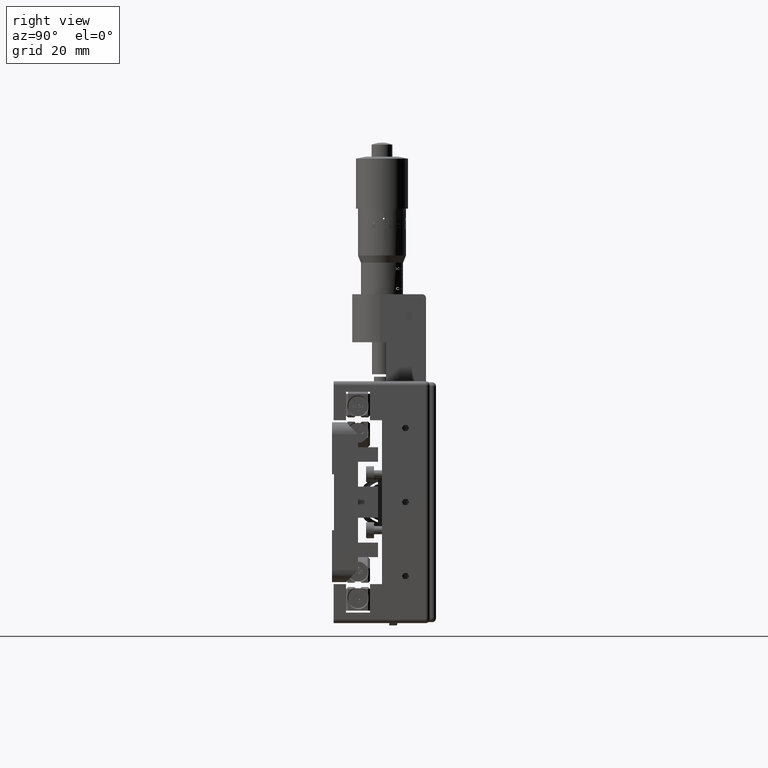
[diagram: clean part render]
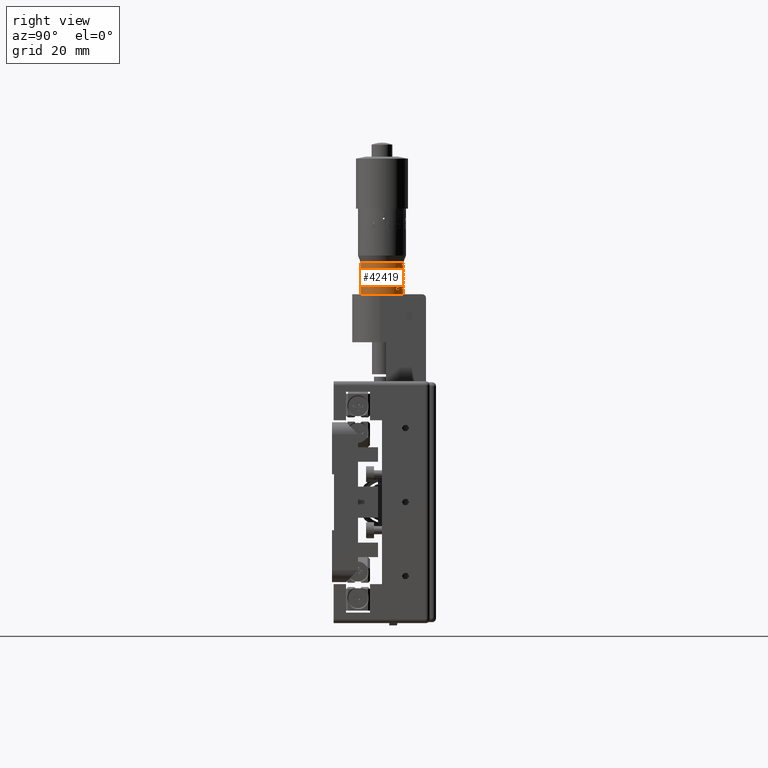
[diagram: same view with one face highlighted and labeled with its STEP entity id]
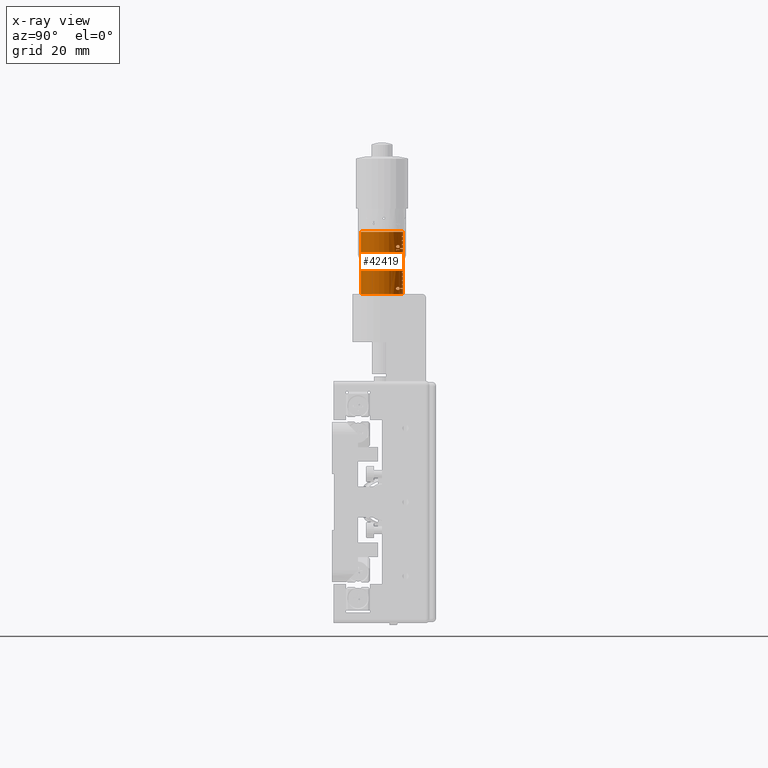
[diagram: x-ray of the same camera — body ghosted, the highlighted face saturated]
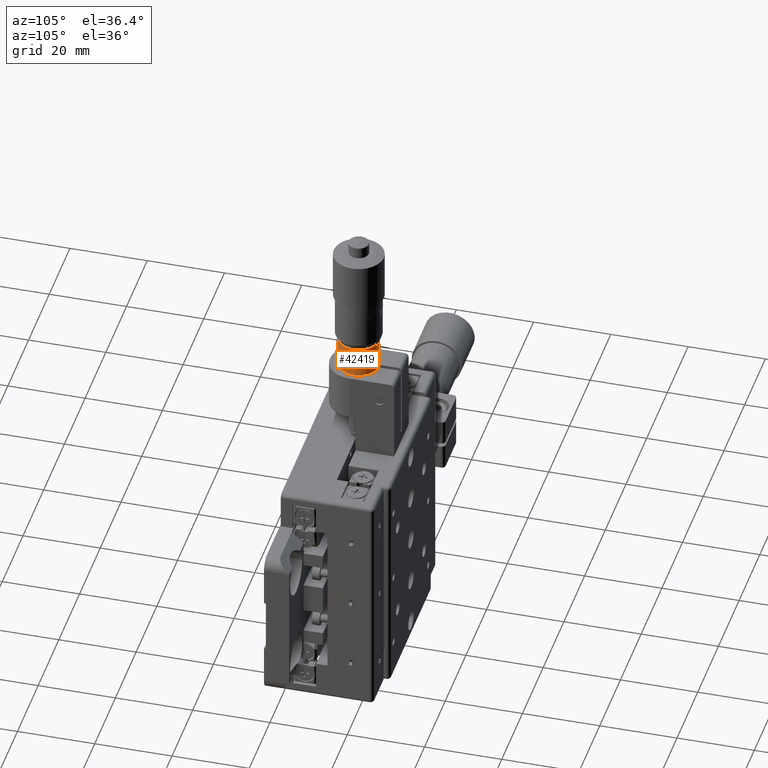
[diagram: same view with one face highlighted and labeled with its STEP entity id]
A machine part, right view. The second image highlights one B-rep face of the part: STEP entity #42419.
The next image is the same camera in x-ray: the body ghosted, the highlighted face saturated — about 0% of this face is hidden behind the body in this view.
A second angle (auxiliary view) of the same face is appended — the face is thin or edge-on in the first view.
In plain terms, the highlighted cylindrical surface (edge-blend (fillet) strip) has radius 5.25 mm, axis along (0, -0, 1).
Its self-contained STEP definition (entity closure, byte-faithful):
#124 = EDGE_CURVE ( 'NONE', #38460, #38083, #66874, .T. ) ;
#156 = CARTESIAN_POINT ( 'NONE',  ( 3.380825115836649800, 16.31653103263433400, 63.55562113564697300 ) ) ;
#320 = CARTESIAN_POINT ( 'NONE',  ( 3.566055747054655900, 16.15301783137382300, 58.27679117963520400 ) ) ;
#359 = EDGE_CURVE ( 'NONE', #38523, #58699, #34406, .T. ) ;
#613 = CARTESIAN_POINT ( 'NONE',  ( 3.892508437974559100, 15.82295173868381800, 63.81719750354825000 ) ) ;
#746 = VERTEX_POINT ( 'NONE', #40461 ) ;
#911 = VECTOR ( 'NONE', #1812, 1000.000000000000000 ) ;
#997 = CARTESIAN_POINT ( 'NONE',  ( 3.772660105022504200, 15.95826622596195700, 58.22856183434054600 ) ) ;
#1293 = VERTEX_POINT ( 'NONE', #60554 ) ;
#1423 = LINE ( 'NONE', #11798, #27995 ) ;
#1571 = VECTOR ( 'NONE', #67625, 1000.000000000000000 ) ;
#1580 = CARTESIAN_POINT ( 'NONE',  ( 0.1688742690772270000, 17.54728324766556500, 55.44999999999987500 ) ) ;
#1595 = DIRECTION ( 'NONE',  ( 1.292004586469426500E-014, -2.597329092545719900E-017, 1.000000000000000000 ) ) ;
#1640 = VECTOR ( 'NONE', #37956, 1000.000000000000000 ) ;
#1643 = VERTEX_POINT ( 'NONE', #51886 ) ;
#1764 =( BOUNDED_CURVE ( )  B_SPLINE_CURVE ( 3, ( #53667, #22156, #997, #38076 ),
 .UNSPECIFIED., .F., .F. ) 
 B_SPLINE_CURVE_WITH_KNOTS ( ( 4, 4 ),
 ( 5.409889883907818700, 5.541812740559370500 ),
 .UNSPECIFIED. ) 
 CURVE ( )  GEOMETRIC_REPRESENTATION_ITEM ( )  RATIONAL_B_SPLINE_CURVE ( ( 1.000000000000000000, 0.9985502224264296600, 0.9985502224264296600, 1.000000000000000000 ) ) 
 REPRESENTATION_ITEM ( '' )  );
#1769 = VERTEX_POINT ( 'NONE', #21029 ) ;
#1812 = DIRECTION ( 'NONE',  ( -1.060572864262741200E-014, 9.636279819008277800E-017, -1.000000000000000000 ) ) ;
#1886 = CARTESIAN_POINT ( 'NONE',  ( 3.015322623553387900, 16.59771212110271300, 58.36573348732750300 ) ) ;
#1958 = CARTESIAN_POINT ( 'NONE',  ( 2.916100388981970300, 16.66570840315007000, 53.23957394014926300 ) ) ;
#1961 = VERTEX_POINT ( 'NONE', #4846 ) ;
#1987 = ORIENTED_EDGE ( 'NONE', *, *, #26853, .F. ) ;
#2011 = EDGE_CURVE ( 'NONE', #52475, #15878, #3329, .T. ) ;
#2053 = EDGE_CURVE ( 'NONE', #12438, #23676, #24106, .T. ) ;
#2170 = DIRECTION ( 'NONE',  ( -0.9998822629915277100, 0.01534471097614616300, 1.057355261547769000E-014 ) ) ;
#2186 = CARTESIAN_POINT ( 'NONE',  ( 3.371730645656948200, 16.32430705954718800, 58.59671996982701400 ) ) ;
#2205 = CARTESIAN_POINT ( 'NONE',  ( 2.953423139273916800, 16.64052626930397600, 58.20114009014263000 ) ) ;
#2392 = CARTESIAN_POINT ( 'NONE',  ( 3.581347688888264700, 16.13880900507589500, 58.34357835082379000 ) ) ;
#2477 = EDGE_CURVE ( 'NONE', #62732, #8000, #5703, .T. ) ;
#2563 = DIRECTION ( 'NONE',  ( -1.060572864262741200E-014, 9.636279819008277800E-017, -1.000000000000000000 ) ) ;
#2583 = CARTESIAN_POINT ( 'NONE',  ( 3.181168995585050400, 16.47673934671811900, 58.70322983130295600 ) ) ;
#2596 = CARTESIAN_POINT ( 'NONE',  ( 3.172101292288438800, 16.48386253155737800, 63.57087406985001400 ) ) ;
#2607 = CARTESIAN_POINT ( 'NONE',  ( 3.015322623553387900, 16.59771212110271300, 58.36573348732750300 ) ) ;
#2645 = CARTESIAN_POINT ( 'NONE',  ( 3.898603560771338700, 15.81616142638597800, 63.92682674354735200 ) ) ;
#2800 = VERTEX_POINT ( 'NONE', #45579 ) ;
#2842 = CARTESIAN_POINT ( 'NONE',  ( 3.236738408763226700, 16.43369438799422600, 58.61873657456410300 ) ) ;
#3013 = VERTEX_POINT ( 'NONE', #26077 ) ;
#3105 = CIRCLE ( 'NONE', #49894, 5.249999999999996400 ) ;
#3112 = CARTESIAN_POINT ( 'NONE',  ( 3.266083314615077600, 16.41037708513207600, 58.61953957707109500 ) ) ;
#3142 = CARTESIAN_POINT ( 'NONE',  ( 3.443461462801502600, 16.26298479079260100, 58.18439051352291400 ) ) ;
#3150 = EDGE_CURVE ( 'NONE', #26205, #49700, #19370, .T. ) ;
#3153 = CARTESIAN_POINT ( 'NONE',  ( -5.765019163176625000E-013, 12.29999999999886200, 63.18382626385216100 ) ) ;
#3329 = LINE ( 'NONE', #15755, #58132 ) ;
#3361 = VERTEX_POINT ( 'NONE', #10160 ) ;
#3458 = EDGE_CURVE ( 'NONE', #49700, #66614, #64986, .T. ) ;
#3716 = CARTESIAN_POINT ( 'NONE',  ( 2.658120176321270700, 16.82734990123614700, 113.4410230692074700 ) ) ;
#3769 = EDGE_CURVE ( 'NONE', #23813, #11181, #7073, .T. ) ;
#4057 = AXIS2_PLACEMENT_3D ( 'NONE', #46474, #14742, #51871 ) ;
#4059 = DIRECTION ( 'NONE',  ( -1.060572864262741200E-014, 9.636279819008277800E-017, -1.000000000000000000 ) ) ;
#4070 = VECTOR ( 'NONE', #50650, 1000.000000000000000 ) ;
#4232 = EDGE_CURVE ( 'NONE', #68602, #58699, #44842, .T. ) ;
#4247 = CARTESIAN_POINT ( 'NONE',  ( 1.664933765818713600, 17.27900547854925500, 66.44999999999988900 ) ) ;
#4272 = LINE ( 'NONE', #48603, #30797 ) ;
#4754 = CARTESIAN_POINT ( 'NONE',  ( 3.447023740509773700, 16.26053376532232900, 53.06480322480816600 ) ) ;
#4845 = CARTESIAN_POINT ( 'NONE',  ( 2.658120176320606800, 16.82734990123614000, 53.44999999999986800 ) ) ;
#4846 = CARTESIAN_POINT ( 'NONE',  ( 0.1688742690773706000, 17.54728324766557900, 66.34999999999986600 ) ) ;
#4980 = CARTESIAN_POINT ( 'NONE',  ( 1.664933765818621600, 17.27900547854929400, 60.34999999999987400 ) ) ;
#5021 = ORIENTED_EDGE ( 'NONE', *, *, #21765, .T. ) ;
#5156 = LINE ( 'NONE', #45488, #10162 ) ;
#5161 = DIRECTION ( 'NONE',  ( -0.9998822629915277100, 0.01534471097614616300, 1.189524669241240200E-014 ) ) ;
#5199 = CARTESIAN_POINT ( 'NONE',  ( 2.961879952567338500, 16.63495966783307600, 64.12416968790222400 ) ) ;
#5274 = EDGE_CURVE ( 'NONE', #31972, #52475, #41141, .T. ) ;
#5515 = CARTESIAN_POINT ( 'NONE',  ( 3.102839064311009300, 16.53515804018850600, 58.17353624668673700 ) ) ;
#5522 = CARTESIAN_POINT ( 'NONE',  ( -6.542546422644594700E-013, 12.29999999999887600, 58.44999999999988900 ) ) ;
#5584 = EDGE_CURVE ( 'NONE', #38083, #26204, #49466, .T. ) ;
#5607 = VERTEX_POINT ( 'NONE', #32537 ) ;
#5617 = ORIENTED_EDGE ( 'NONE', *, *, #29963, .T. ) ;
#5703 = CIRCLE ( 'NONE', #60594, 5.249999999999995600 ) ;
#5707 = ORIENTED_EDGE ( 'NONE', *, *, #55720, .F. ) ;
#5929 = CARTESIAN_POINT ( 'NONE',  ( 3.899238977290450300, 15.81545664145735100, 63.88995607154440400 ) ) ;
#6132 = VERTEX_POINT ( 'NONE', #57102 ) ;
#6134 = CARTESIAN_POINT ( 'NONE',  ( -5.524638102890037100E-013, 12.29999999999886200, 65.44999999999990300 ) ) ;
#6185 = CARTESIAN_POINT ( 'NONE',  ( 2.913812421602869100, 16.66717267482051300, 58.36052515399417500 ) ) ;
#6375 = EDGE_CURVE ( 'NONE', #42462, #40381, #34026, .T. ) ;
#6390 = CARTESIAN_POINT ( 'NONE',  ( 2.872661125362960400, 16.69435075140829000, 53.36459185309373500 ) ) ;
#6797 = EDGE_CURVE ( 'NONE', #50960, #17263, #52299, .T. ) ;
#6922 = AXIS2_PLACEMENT_3D ( 'NONE', #29888, #67005, #35178 ) ;
#6986 = CARTESIAN_POINT ( 'NONE',  ( 0.1688742690772588300, 17.54728324766556500, 58.44999999999986100 ) ) ;
#7073 = B_SPLINE_CURVE_WITH_KNOTS ( 'NONE', 3,
 ( #10775, #37175, #53022, #47873, #16128, #53226, #21479, #58584 ),
 .UNSPECIFIED., .F., .F.,
 ( 4, 2, 2, 4 ),
 ( 0.0000000000000000000, 0.0001468254765127033200, 0.0002936509530254066500, 0.0005873019060508083100 ),
 .UNSPECIFIED. ) ;
#7223 = DIRECTION ( 'NONE',  ( -1.060572864262741200E-014, 9.636279819008277800E-017, -1.000000000000000000 ) ) ;
#7255 = DIRECTION ( 'NONE',  ( 1.060735355159530700E-014, 9.518482891059743100E-018, 1.000000000000000000 ) ) ;
#7301 = CARTESIAN_POINT ( 'NONE',  ( 3.025520474994689100, 16.59101746992928400, 53.13430403751524300 ) ) ;
#7356 = DIRECTION ( 'NONE',  ( 1.176369970814478700E-014, -8.227404017198604700E-018, 1.000000000000000000 ) ) ;
#7416 = DIRECTION ( 'NONE',  ( 1.060572864262741200E-014, -9.636279819008277800E-017, 1.000000000000000000 ) ) ;
#7508 = CARTESIAN_POINT ( 'NONE',  ( 3.438672656201397200, 16.26721627634242400, 58.53877468853291100 ) ) ;
#7531 = CARTESIAN_POINT ( 'NONE',  ( 3.031052404927523800, 16.58675939284833900, 58.11677392759691700 ) ) ;
#7536 = AXIS2_PLACEMENT_3D ( 'NONE', #5522, #26657, #63777 ) ;
#7669 = LINE ( 'NONE', #17536, #35873 ) ;
#7713 = CARTESIAN_POINT ( 'NONE',  ( 3.583708757490189800, 16.13660416794264000, 58.36369747538637400 ) ) ;
#7761 = ORIENTED_EDGE ( 'NONE', *, *, #11206, .T. ) ;
#7920 = CARTESIAN_POINT ( 'NONE',  ( 3.062492486313304500, 16.56444460828426900, 58.65479079550557600 ) ) ;
#7940 = CARTESIAN_POINT ( 'NONE',  ( 3.329347199204558500, 16.35986141699997600, 63.55592695051238600 ) ) ;
#7991 = CARTESIAN_POINT ( 'NONE',  ( 1.664933765819073500, 17.27900547854927600, 113.4410230692074700 ) ) ;
#8000 = VERTEX_POINT ( 'NONE', #21953 ) ;
#8089 = ORIENTED_EDGE ( 'NONE', *, *, #23505, .F. ) ;
#8235 = ORIENTED_EDGE ( 'NONE', *, *, #55528, .T. ) ;
#8237 = ORIENTED_EDGE ( 'NONE', *, *, #11286, .T. ) ;
#8264 = CIRCLE ( 'NONE', #10751, 5.249999999999996400 ) ;
#8423 = DIRECTION ( 'NONE',  ( -1.060572864262741200E-014, 9.636279819008277800E-017, -1.000000000000000000 ) ) ;
#8493 = DIRECTION ( 'NONE',  ( -0.9998822629915279400, 0.01534471097613922400, 1.057355261547769000E-014 ) ) ;
#8692 = CARTESIAN_POINT ( 'NONE',  ( 3.380825115836657300, 16.31653103263433400, 64.23510831513415600 ) ) ;
#8729 = DIRECTION ( 'NONE',  ( 1.060735355159530700E-014, 9.518482891059743100E-018, 1.000000000000000000 ) ) ;
#8762 = CARTESIAN_POINT ( 'NONE',  ( 0.1688742690778421400, 17.54728324766556500, 113.4410230692075000 ) ) ;
#8780 = VECTOR ( 'NONE', #40993, 1000.000000000000000 ) ;
#8844 = VECTOR ( 'NONE', #2563, 1000.000000000000000 ) ;
#9059 = DIRECTION ( 'NONE',  ( -1.060572864262741200E-014, 9.636279819008277800E-017, -1.000000000000000000 ) ) ;
#9122 = CARTESIAN_POINT ( 'NONE',  ( 1.664933765818561200, 17.27900547854924400, 57.34999999999985900 ) ) ;
#9128 = VECTOR ( 'NONE', #43115, 1000.000000000000000 ) ;
#9451 = CARTESIAN_POINT ( 'NONE',  ( 0.1688742690778699000, 17.54728324766556500, 113.4410230692075000 ) ) ;
#9506 = CARTESIAN_POINT ( 'NONE',  ( 0.1688742690772906400, 17.54728324766556500, 61.44999999999986800 ) ) ;
#9539 = AXIS2_PLACEMENT_3D ( 'NONE', #29895, #56381, #19519 ) ;
#9661 = CARTESIAN_POINT ( 'NONE',  ( 0.08055973262411877900, 17.54938188070438800, 52.19064518190820200 ) ) ;
#9715 = EDGE_LOOP ( 'NONE', ( #16489, #40273, #22715, #30148 ) ) ;
#9820 = VERTEX_POINT ( 'NONE', #8692 ) ;
#9843 = VECTOR ( 'NONE', #50452, 1000.000000000000000 ) ;
#9919 = CARTESIAN_POINT ( 'NONE',  ( 3.178099221435759100, 16.48070487386224400, 53.73750890609810700 ) ) ;
#9920 = ORIENTED_EDGE ( 'NONE', *, *, #17705, .T. ) ;
#10084 = CARTESIAN_POINT ( 'NONE',  ( 3.608034806326763100, 16.11442323505455600, 53.08052296162004800 ) ) ;
#10160 = CARTESIAN_POINT ( 'NONE',  ( 3.391449384063450100, 16.30756423221405200, 53.06447408342120300 ) ) ;
#10162 = VECTOR ( 'NONE', #8423, 1000.000000000000000 ) ;
#10331 = FACE_BOUND ( 'NONE', #26088, .T. ) ;
#10451 = CARTESIAN_POINT ( 'NONE',  ( 0.1688742690772163900, 17.54728324766556500, 54.44999999999987500 ) ) ;
#10457 = EDGE_LOOP ( 'NONE', ( #25042, #39717, #51305, #10931 ) ) ;
#10509 = LINE ( 'NONE', #55704, #8844 ) ;
#10565 = CARTESIAN_POINT ( 'NONE',  ( 2.862424745313913100, 16.70102555950467100, 63.95872659379166000 ) ) ;
#10676 = EDGE_CURVE ( 'NONE', #39620, #5607, #50719, .T. ) ;
#10751 = AXIS2_PLACEMENT_3D ( 'NONE', #56076, #24283, #61368 ) ;
#10775 = CARTESIAN_POINT ( 'NONE',  ( 3.585215622930935500, 16.13519607544110100, 58.39457964117365700 ) ) ;
#10810 = CARTESIAN_POINT ( 'NONE',  ( 0.1688742690778699000, 17.54728324766556500, 113.4410230692075000 ) ) ;
#10861 = CARTESIAN_POINT ( 'NONE',  ( 3.039638531748830800, 16.58056534975446200, 58.25715669918934500 ) ) ;
#10875 = VERTEX_POINT ( 'NONE', #26215 ) ;
#10894 = ORIENTED_EDGE ( 'NONE', *, *, #45064, .F. ) ;
#10895 = AXIS2_PLACEMENT_3D ( 'NONE', #67796, #35981, #5161 ) ;
#10931 = ORIENTED_EDGE ( 'NONE', *, *, #2053, .F. ) ;
#11181 = VERTEX_POINT ( 'NONE', #24767 ) ;
#11189 = EDGE_CURVE ( 'NONE', #16817, #42462, #58075, .T. ) ;
#11206 = EDGE_CURVE ( 'NONE', #64152, #61958, #31447, .T. ) ;
#11286 = EDGE_CURVE ( 'NONE', #9820, #61255, #49544, .T. ) ;
#11386 = DIRECTION ( 'NONE',  ( 1.292004586469426500E-014, -2.597329092545719900E-017, 1.000000000000000000 ) ) ;
#11446 = ORIENTED_EDGE ( 'NONE', *, *, #359, .T. ) ;
#11475 = DIRECTION ( 'NONE',  ( -0.9998822629915276000, 0.01534471097614979600, 1.321694076934711000E-014 ) ) ;
#11606 = EDGE_CURVE ( 'NONE', #38242, #67042, #18206, .T. ) ;
#11628 = AXIS2_PLACEMENT_3D ( 'NONE', #33310, #1595, #38681 ) ;
#11798 = CARTESIAN_POINT ( 'NONE',  ( 3.926043549852428900, 15.78549595389998700, 113.4410230692074500 ) ) ;
#11916 = VERTEX_POINT ( 'NONE', #9661 ) ;
#11962 = FACE_BOUND ( 'NONE', #37331, .T. ) ;
#12379 = CARTESIAN_POINT ( 'NONE',  ( 1.664933765818702900, 17.27900547854925500, 65.44999999999988900 ) ) ;
#12384 = VERTEX_POINT ( 'NONE', #9122 ) ;
#12438 = VERTEX_POINT ( 'NONE', #4247 ) ;
#12624 = CARTESIAN_POINT ( 'NONE',  ( 3.182942987462194800, 16.47562163485335100, 53.07966855062819900 ) ) ;
#12710 = CARTESIAN_POINT ( 'NONE',  ( 3.879484237344046300, 15.83728910087094400, 53.53723396312728500 ) ) ;
#12734 = DIRECTION ( 'NONE',  ( 1.060572864262741200E-014, -9.636279819008277800E-017, 1.000000000000000000 ) ) ;
#12742 = CARTESIAN_POINT ( 'NONE',  ( -7.694401015122572700E-013, 12.29999999999887100, 55.44999999999990300 ) ) ;
#12841 = CARTESIAN_POINT ( 'NONE',  ( 3.479172923393423700, 16.23167778721981900, 58.44869343495375300 ) ) ;
#12856 = CARTESIAN_POINT ( 'NONE',  ( 3.125852652640512400, 16.51818837276047700, 58.06822253163055300 ) ) ;
#13012 = CARTESIAN_POINT ( 'NONE',  ( 3.221732497036991400, 16.44555468037435400, 58.70832441938744500 ) ) ;
#13025 = CARTESIAN_POINT ( 'NONE',  ( 2.861433425670278900, 16.70166999563155800, 63.88995607154441800 ) ) ;
#13045 = CARTESIAN_POINT ( 'NONE',  ( 3.584933552938906100, 16.13545975993657300, 58.38426988476571500 ) ) ;
#13064 = CARTESIAN_POINT ( 'NONE',  ( -5.418564567374084500E-013, 12.29999999999886200, 66.44999999999990300 ) ) ;
#13227 = CARTESIAN_POINT ( 'NONE',  ( 2.962218986006254000, 16.63454816835002200, 58.55660409569456700 ) ) ;
#13270 = AXIS2_PLACEMENT_3D ( 'NONE', #25489, #62565, #30784 ) ;
#13280 = LINE ( 'NONE', #25396, #53997 ) ;
#13312 = VERTEX_POINT ( 'NONE', #57335 ) ;
#13632 = FACE_BOUND ( 'NONE', #57570, .T. ) ;
#13685 = CARTESIAN_POINT ( 'NONE',  ( 0.1688742690778699000, 17.54728324766556500, 113.4410230692075000 ) ) ;
#13808 = VERTEX_POINT ( 'NONE', #21288 ) ;
#13823 = DIRECTION ( 'NONE',  ( 1.176369970814478500E-014, -8.227404017198666300E-018, 1.000000000000000000 ) ) ;
#13918 = EDGE_LOOP ( 'NONE', ( #39205, #9920, #17233, #34791, #63027, #51459 ) ) ;
#13972 = ORIENTED_EDGE ( 'NONE', *, *, #124, .T. ) ;
#14113 = CIRCLE ( 'NONE', #46545, 5.249999999999996400 ) ;
#14124 = AXIS2_PLACEMENT_3D ( 'NONE', #13064, #50192, #18454 ) ;
#14125 = DIRECTION ( 'NONE',  ( -1.060572864262741200E-014, 9.636279819008277800E-017, -1.000000000000000000 ) ) ;
#14310 = VERTEX_POINT ( 'NONE', #41736 ) ;
#14357 = VERTEX_POINT ( 'NONE', #42443 ) ;
#14415 = CARTESIAN_POINT ( 'NONE',  ( 1.664933765819129000, 17.27900547854926600, 113.4410230692074700 ) ) ;
#14742 = DIRECTION ( 'NONE',  ( -1.060572864262741200E-014, 9.636279819008277800E-017, -1.000000000000000000 ) ) ;
#14940 = CARTESIAN_POINT ( 'NONE',  ( 0.1688742690772800400, 17.54728324766556500, 60.44999999999986800 ) ) ;
#15025 = B_SPLINE_CURVE_WITH_KNOTS ( 'NONE', 3,
 ( #60211, #6390, #65537, #33689, #1958, #39016, #7301, #44379, #12624, #49742, #18009, #55106 ),
 .UNSPECIFIED., .F., .F.,
 ( 4, 2, 2, 2, 2, 4 ),
 ( 0.0000000000000000000, 0.0001014665243429316700, 0.0002029330486858633400, 0.0004058660973717306400, 0.0006087991460575980200, 0.0008117321947434652900 ),
 .UNSPECIFIED. ) ;
#15091 = ORIENTED_EDGE ( 'NONE', *, *, #47065, .T. ) ;
#15259 = CARTESIAN_POINT ( 'NONE',  ( 2.972826859614668300, 16.62746126966829200, 53.63314125504938100 ) ) ;
#15327 = FACE_BOUND ( 'NONE', #13918, .T. ) ;
#15450 = CARTESIAN_POINT ( 'NONE',  ( 3.757548961341032400, 15.96715849500440500, 53.13414087224749900 ) ) ;
#15755 = CARTESIAN_POINT ( 'NONE',  ( 0.1688742690778421400, 17.54728324766556500, 113.4410230692075000 ) ) ;
#15775 = LINE ( 'NONE', #65674, #43924 ) ;
#15821 = CARTESIAN_POINT ( 'NONE',  ( 0.08055973262468782400, 17.54938188070439500, 113.4410230692075000 ) ) ;
#15878 = VERTEX_POINT ( 'NONE', #52236 ) ;
#15946 = CARTESIAN_POINT ( 'NONE',  ( -7.598934833158216800E-013, 12.29999999999887100, 56.34999999999988800 ) ) ;
#16119 = CARTESIAN_POINT ( 'NONE',  ( -6.519123091806768900E-013, 12.29999999999887600, 58.67082162835320200 ) ) ;
#16128 = CARTESIAN_POINT ( 'NONE',  ( 3.509098027592385100, 16.20518415454228000, 58.60933626131943400 ) ) ;
#16213 = CARTESIAN_POINT ( 'NONE',  ( 3.016185529506584000, 16.59710669668866200, 58.33719885770614200 ) ) ;
#16294 = EDGE_CURVE ( 'NONE', #13808, #35038, #51032, .T. ) ;
#16311 = ORIENTED_EDGE ( 'NONE', *, *, #31961, .T. ) ;
#16380 = VECTOR ( 'NONE', #46916, 1000.000000000000000 ) ;
#16405 = CARTESIAN_POINT ( 'NONE',  ( 3.490915055986296700, 16.22189129296467100, 63.55816863440495700 ) ) ;
#16469 = VECTOR ( 'NONE', #14125, 1000.000000000000000 ) ;
#16486 = CARTESIAN_POINT ( 'NONE',  ( 2.872088719053453900, 16.69472483665034100, 53.39880901931865500 ) ) ;
#16489 = ORIENTED_EDGE ( 'NONE', *, *, #46134, .T. ) ;
#16643 = CARTESIAN_POINT ( 'NONE',  ( 1.664933765818562800, 17.27900547854927300, 57.44999999999986100 ) ) ;
#16718 = DIRECTION ( 'NONE',  ( 1.060735355159530700E-014, 9.518482891059743100E-018, 1.000000000000000000 ) ) ;
#16813 = CARTESIAN_POINT ( 'NONE',  ( -5.842858709437897800E-013, 12.29999999999886200, 62.44999999999989600 ) ) ;
#16817 = VERTEX_POINT ( 'NONE', #25162 ) ;
#16937 = DIRECTION ( 'NONE',  ( 1.060572864262741200E-014, -9.636279819008277800E-017, 1.000000000000000000 ) ) ;
#16975 = AXIS2_PLACEMENT_3D ( 'NONE', #54594, #22837, #59913 ) ;
#17233 = ORIENTED_EDGE ( 'NONE', *, *, #3150, .T. ) ;
#17246 = DIRECTION ( 'NONE',  ( -1.060572864262741200E-014, 9.636279819008277800E-017, -1.000000000000000000 ) ) ;
#17263 = VERTEX_POINT ( 'NONE', #40300 ) ;
#17341 = DIRECTION ( 'NONE',  ( 1.060735355159530700E-014, 9.518482891059743100E-018, 1.000000000000000000 ) ) ;
#17409 = VERTEX_POINT ( 'NONE', #59106 ) ;
#17478 = EDGE_CURVE ( 'NONE', #64979, #34742, #3105, .T. ) ;
#17536 = CARTESIAN_POINT ( 'NONE',  ( 1.664933765819267300, 17.27900547854923400, 113.4410230692074700 ) ) ;
#17557 = CARTESIAN_POINT ( 'NONE',  ( 0.1688742690772047400, 17.54728324766556500, 53.34999999999986600 ) ) ;
#17638 = LINE ( 'NONE', #57812, #28403 ) ;
#17665 = ORIENTED_EDGE ( 'NONE', *, *, #30092, .T. ) ;
#17705 = EDGE_CURVE ( 'NONE', #40381, #26205, #32935, .T. ) ;
#17827 = CARTESIAN_POINT ( 'NONE',  ( 3.773091472417305200, 15.95051787295481700, 113.4410230692074500 ) ) ;
#17873 = EDGE_LOOP ( 'NONE', ( #27618, #43106, #65849, #45513 ) ) ;
#17989 = DIRECTION ( 'NONE',  ( 1.060735355159530700E-014, 9.518482891059743100E-018, 1.000000000000000000 ) ) ;
#18009 = CARTESIAN_POINT ( 'NONE',  ( 3.340031855932850600, 16.35107693319756500, 53.06478248598957500 ) ) ;
#18098 = CARTESIAN_POINT ( 'NONE',  ( 3.805420446205572300, 15.91723486408171200, 53.63648856817351900 ) ) ;
#18118 = EDGE_CURVE ( 'NONE', #61255, #14310, #35054, .T. ) ;
#18133 = DIRECTION ( 'NONE',  ( -0.9998822629915276000, 0.01534471097614979600, 1.189524669241239900E-014 ) ) ;
#18153 = CARTESIAN_POINT ( 'NONE',  ( 3.899238977290450300, 15.81545664145735100, 63.88995607154440400 ) ) ;
#18155 = VERTEX_POINT ( 'NONE', #34558 ) ;
#18206 = LINE ( 'NONE', #39866, #4070 ) ;
#18243 = CARTESIAN_POINT ( 'NONE',  ( 3.484053284066819700, 16.22732386158427800, 58.37835367963520400 ) ) ;
#18259 = CARTESIAN_POINT ( 'NONE',  ( 3.192833114719572800, 16.46753124781760700, 58.05543701296853200 ) ) ;
#18454 = DIRECTION ( 'NONE',  ( -0.9998822629915276000, 0.01534471097614979600, 1.057355261547768800E-014 ) ) ;
#18588 = DIRECTION ( 'NONE',  ( 1.060572864262741200E-014, -9.636279819008277800E-017, 1.000000000000000000 ) ) ;
#18639 = CARTESIAN_POINT ( 'NONE',  ( 2.914280639270346200, 16.66686027626054300, 58.41272689721584000 ) ) ;
#18666 = ORIENTED_EDGE ( 'NONE', *, *, #56825, .F. ) ;
#18700 = CARTESIAN_POINT ( 'NONE',  ( 3.869227736225032000, 15.84850398310211300, 64.02761856988468000 ) ) ;
#18729 = DIRECTION ( 'NONE',  ( 1.060735355159530700E-014, 9.518482891059743100E-018, 1.000000000000000000 ) ) ;
#18784 = ORIENTED_EDGE ( 'NONE', *, *, #4232, .F. ) ;
#18890 = ORIENTED_EDGE ( 'NONE', *, *, #66030, .T. ) ;
#18967 = CARTESIAN_POINT ( 'NONE',  ( 3.484053284066819700, 16.22732386158427800, 58.37835367963520400 ) ) ;
#19053 = CIRCLE ( 'NONE', #10895, 5.249999999999995600 ) ;
#19135 = VECTOR ( 'NONE', #7416, 1000.000000000000000 ) ;
#19370 = LINE ( 'NONE', #39120, #30090 ) ;
#19375 = VERTEX_POINT ( 'NONE', #4980 ) ;
#19426 = VECTOR ( 'NONE', #68319, 1000.000000000000000 ) ;
#19434 = CARTESIAN_POINT ( 'NONE',  ( 3.840880757949794300, 15.87946172110104800, 62.97964939256544900 ) ) ;
#19519 = DIRECTION ( 'NONE',  ( -0.01534471097613913400, -0.9998822629915279400, 0.0000000000000000000 ) ) ;
#19669 = EDGE_CURVE ( 'NONE', #53799, #6132, #5156, .T. ) ;
#19912 = CARTESIAN_POINT ( 'NONE',  ( 0.1688742690778699000, 17.54728324766556500, 113.4410230692075000 ) ) ;
#19946 = DIRECTION ( 'NONE',  ( -1.060572864262741200E-014, 9.636279819008277800E-017, -1.000000000000000000 ) ) ;
#20409 = VECTOR ( 'NONE', #47507, 1000.000000000000000 ) ;
#20489 = CIRCLE ( 'NONE', #48953, 5.249999999999995600 ) ;
#20535 = ORIENTED_EDGE ( 'NONE', *, *, #30969, .T. ) ;
#20634 = CARTESIAN_POINT ( 'NONE',  ( 2.899439966717298800, 16.67674758683331900, 53.52932841204475500 ) ) ;
#20694 = EDGE_CURVE ( 'NONE', #56292, #34640, #63132, .T. ) ;
#20711 = CARTESIAN_POINT ( 'NONE',  ( 2.658120176320687600, 16.82734990123614300, 58.44999999999983900 ) ) ;
#20806 = CARTESIAN_POINT ( 'NONE',  ( 3.862403120603286900, 15.85599979299244900, 53.23407003858851300 ) ) ;
#20870 = ORIENTED_EDGE ( 'NONE', *, *, #25935, .T. ) ;
#21029 = CARTESIAN_POINT ( 'NONE',  ( 1.664933765818531000, 17.27900547854927300, 54.44999999999986100 ) ) ;
#21152 = CIRCLE ( 'NONE', #56322, 5.249999999999995600 ) ;
#21288 = CARTESIAN_POINT ( 'NONE',  ( 0.1688742690773502300, 17.54728324766556500, 64.44999999999987500 ) ) ;
#21301 = DIRECTION ( 'NONE',  ( -0.9998822629915276000, 0.01534471097614979600, 1.057355261547768800E-014 ) ) ;
#21365 = VERTEX_POINT ( 'NONE', #51517 ) ;
#21416 = VERTEX_POINT ( 'NONE', #4845 ) ;
#21420 = CARTESIAN_POINT ( 'NONE',  ( 3.585215622930935500, 16.13519607544110100, 58.39457964117365700 ) ) ;
#21473 = DIRECTION ( 'NONE',  ( -0.9998822629915279400, 0.01534471097613922400, 1.057355261547769000E-014 ) ) ;
#21479 = CARTESIAN_POINT ( 'NONE',  ( 3.339591934697395500, 16.35207993714523100, 58.70760782112119400 ) ) ;
#21557 = ORIENTED_EDGE ( 'NONE', *, *, #35905, .F. ) ;
#21743 = CARTESIAN_POINT ( 'NONE',  ( 3.649759727152656700, 16.07444791053925600, 63.58315790564354600 ) ) ;
#21765 = EDGE_CURVE ( 'NONE', #66439, #60719, #50350, .T. ) ;
#21953 = CARTESIAN_POINT ( 'NONE',  ( 0.1688742690773385700, 17.54728324766556500, 63.34999999999986600 ) ) ;
#22156 = CARTESIAN_POINT ( 'NONE',  ( 3.608222306250402000, 16.12055072426989700, 58.19432416314464300 ) ) ;
#22172 = DIRECTION ( 'NONE',  ( -0.9998822629915276000, 0.01534471097614979600, 1.057355261547768800E-014 ) ) ;
#22235 = CARTESIAN_POINT ( 'NONE',  ( 3.874021116790796100, 15.84322739697098100, 62.99893043051876900 ) ) ;
#22297 = ORIENTED_EDGE ( 'NONE', *, *, #51181, .T. ) ;
#22452 = CIRCLE ( 'NONE', #13270, 5.249999999999996400 ) ;
#22650 = VERTEX_POINT ( 'NONE', #68367 ) ;
#22660 = DIRECTION ( 'NONE',  ( -1.060572864262741200E-014, 9.636279819008277800E-017, -1.000000000000000000 ) ) ;
#22672 = ORIENTED_EDGE ( 'NONE', *, *, #52820, .F. ) ;
#22715 = ORIENTED_EDGE ( 'NONE', *, *, #2477, .F. ) ;
#22790 = FACE_OUTER_BOUND ( 'NONE', #34232, .T. ) ;
#22837 = DIRECTION ( 'NONE',  ( 1.060735355159530700E-014, 9.518482891059743100E-018, 1.000000000000000000 ) ) ;
#22906 = AXIS2_PLACEMENT_3D ( 'NONE', #65725, #33902, #2170 ) ;
#22908 = CARTESIAN_POINT ( 'NONE',  ( 2.914646413040945300, 16.66661622908485900, 58.31811351520791900 ) ) ;
#22918 = LINE ( 'NONE', #14415, #8780 ) ;
#22942 = EDGE_LOOP ( 'NONE', ( #13972, #55491, #46849, #44198 ) ) ;
#23197 = CARTESIAN_POINT ( 'NONE',  ( -7.917155439706075500E-013, 12.29999999999887100, 53.34999999999989500 ) ) ;
#23216 = CARTESIAN_POINT ( 'NONE',  ( 3.909313661885501600, 15.80424988678952600, 53.43595163299937000 ) ) ;
#23269 = LINE ( 'NONE', #37808, #9128 ) ;
#23434 = CARTESIAN_POINT ( 'NONE',  ( 3.610203047411336500, 16.11422517091083900, 53.73552544454865700 ) ) ;
#23505 = EDGE_CURVE ( 'NONE', #55873, #6132, #58385, .T. ) ;
#23676 = VERTEX_POINT ( 'NONE', #42190 ) ;
#23743 = CARTESIAN_POINT ( 'NONE',  ( 3.262322592878071700, 16.41336252960810100, 58.70928316681468600 ) ) ;
#23757 = LINE ( 'NONE', #61237, #50269 ) ;
#23760 = CARTESIAN_POINT ( 'NONE',  ( 2.888844020841676100, 16.68374825008941500, 63.75916603916097400 ) ) ;
#23813 = VERTEX_POINT ( 'NONE', #21420 ) ;
#23997 = CARTESIAN_POINT ( 'NONE',  ( 3.052719877091894900, 16.57126876653234100, 58.50581096980413800 ) ) ;
#24034 = CARTESIAN_POINT ( 'NONE',  ( 3.795569638934792200, 15.92756358951681000, 64.12698872758642200 ) ) ;
#24101 = DIRECTION ( 'NONE',  ( 1.060735355159530700E-014, 9.518482891059743100E-018, 1.000000000000000000 ) ) ;
#24106 = LINE ( 'NONE', #64450, #1640 ) ;
#24261 = CARTESIAN_POINT ( 'NONE',  ( 3.479667794856415000, 16.23120999660731200, 58.32156331955454200 ) ) ;
#24283 = DIRECTION ( 'NONE',  ( 1.060735355159530700E-014, 9.518482891059743100E-018, 1.000000000000000000 ) ) ;
#24458 = FACE_BOUND ( 'NONE', #55398, .T. ) ;
#24657 = VECTOR ( 'NONE', #4059, 1000.000000000000000 ) ;
#24767 = CARTESIAN_POINT ( 'NONE',  ( 3.262322592878071700, 16.41336252960810100, 58.70928316681468600 ) ) ;
#24811 = EDGE_CURVE ( 'NONE', #3013, #66510, #32401, .T. ) ;
#25010 = EDGE_CURVE ( 'NONE', #38460, #51815, #4272, .T. ) ;
#25021 = VECTOR ( 'NONE', #45882, 1000.000000000000000 ) ;
#25042 = ORIENTED_EDGE ( 'NONE', *, *, #37646, .T. ) ;
#25111 = DIRECTION ( 'NONE',  ( 1.060735355159530700E-014, 9.518482891059743100E-018, 1.000000000000000000 ) ) ;
#25112 = EDGE_CURVE ( 'NONE', #66510, #3361, #15025, .T. ) ;
#25162 = CARTESIAN_POINT ( 'NONE',  ( 2.886822572375857400, 16.68506048254843300, 63.09408267410851300 ) ) ;
#25204 = DIRECTION ( 'NONE',  ( -1.060735355159530700E-014, -9.518482891059743100E-018, -1.000000000000000000 ) ) ;
#25230 = DIRECTION ( 'NONE',  ( 1.292004586469426500E-014, -2.597329092545719900E-017, 1.000000000000000000 ) ) ;
#25239 = EDGE_CURVE ( 'NONE', #17263, #34742, #13280, .T. ) ;
#25392 = ORIENTED_EDGE ( 'NONE', *, *, #60251, .T. ) ;
#25396 = CARTESIAN_POINT ( 'NONE',  ( 0.1688742690778699000, 17.54728324766556500, 113.4410230692075000 ) ) ;
#25489 = CARTESIAN_POINT ( 'NONE',  ( -6.066677887235894700E-013, 12.29999999999885500, 60.34999999999988800 ) ) ;
#25756 = EDGE_CURVE ( 'NONE', #50303, #13808, #33894, .T. ) ;
#25929 = CARTESIAN_POINT ( 'NONE',  ( 2.872583227280360400, 16.69440166021659500, 53.43315444357997300 ) ) ;
#25935 = EDGE_CURVE ( 'NONE', #60719, #48368, #30540, .T. ) ;
#26004 = DIRECTION ( 'NONE',  ( -1.060572864262741200E-014, 9.636279819008277800E-017, -1.000000000000000000 ) ) ;
#26077 = CARTESIAN_POINT ( 'NONE',  ( 3.391449384063457600, 16.30756423221405200, 53.74396126290838500 ) ) ;
#26088 = EDGE_LOOP ( 'NONE', ( #52638, #49841, #40564, #49198 ) ) ;
#26098 = ORIENTED_EDGE ( 'NONE', *, *, #51355, .F. ) ;
#26116 = FACE_BOUND ( 'NONE', #54682, .T. ) ;
#26119 = CARTESIAN_POINT ( 'NONE',  ( 3.903051300831412300, 15.81126825864889800, 53.32598489157682300 ) ) ;
#26195 = CARTESIAN_POINT ( 'NONE',  ( 2.861433425670278900, 16.70166999563155800, 63.88995607154441800 ) ) ;
#26204 = VERTEX_POINT ( 'NONE', #53979 ) ;
#26205 = VERTEX_POINT ( 'NONE', #22235 ) ;
#26215 = CARTESIAN_POINT ( 'NONE',  ( 1.664933765818691300, 17.27900547854925500, 64.34999999999988100 ) ) ;
#26351 = AXIS2_PLACEMENT_3D ( 'NONE', #12742, #49863, #18133 ) ;
#26361 = CARTESIAN_POINT ( 'NONE',  ( 3.276917261504723700, 16.40399314379538300, 64.23382718185610000 ) ) ;
#26415 = ORIENTED_EDGE ( 'NONE', *, *, #58206, .T. ) ;
#26485 =( BOUNDED_CURVE ( )  B_SPLINE_CURVE ( 3, ( #47852, #53213, #32042, #320 ),
 .UNSPECIFIED., .F., .F. ) 
 B_SPLINE_CURVE_WITH_KNOTS ( ( 4, 4 ),
 ( 0.7698625612467708800, 0.8394031697995603100 ),
 .UNSPECIFIED. ) 
 CURVE ( )  GEOMETRIC_REPRESENTATION_ITEM ( )  RATIONAL_B_SPLINE_CURVE ( ( 1.000000000000000000, 0.9995970492457138000, 0.9995970492457138000, 1.000000000000000000 ) ) 
 REPRESENTATION_ITEM ( '' )  );
#26650 = CARTESIAN_POINT ( 'NONE',  ( 3.148328788595615300, 16.50162694566540700, 58.15559822726280700 ) ) ;
#26657 = DIRECTION ( 'NONE',  ( 1.060735355159530700E-014, 9.518482891059743100E-018, 1.000000000000000000 ) ) ;
#26853 = EDGE_CURVE ( 'NONE', #21416, #31631, #53681, .T. ) ;
#27054 = CARTESIAN_POINT ( 'NONE',  ( 3.794437096903132500, 15.92875693532856700, 63.65506276745351500 ) ) ;
#27104 = CARTESIAN_POINT ( 'NONE',  ( 0.1688742690772153700, 17.54728324766556500, 54.34999999999987400 ) ) ;
#27518 = DIRECTION ( 'NONE',  ( -1.060572864262741200E-014, 9.636279819008277800E-017, -1.000000000000000000 ) ) ;
#27561 = EDGE_LOOP ( 'NONE', ( #58165, #62435, #45018, #22672 ) ) ;
#27618 = ORIENTED_EDGE ( 'NONE', *, *, #64047, .F. ) ;
#27654 = EDGE_CURVE ( 'NONE', #59092, #23813, #66841, .T. ) ;
#27754 = FACE_BOUND ( 'NONE', #37911, .T. ) ;
#27783 = CARTESIAN_POINT ( 'NONE',  ( -5.736785173921944200E-013, 12.29999999999886200, 63.44999999999989600 ) ) ;
#27873 = B_SPLINE_CURVE_WITH_KNOTS ( 'NONE', 3,
 ( #23743, #13012, #2583, #39617, #7920, #44997, #13227, #50387, #18639, #55725 ),
 .UNSPECIFIED., .F., .F.,
 ( 4, 2, 2, 2, 4 ),
 ( 0.0000000000000000000, 0.0001540396451174654900, 0.0003080792902349309800, 0.0004621189353523964700, 0.0006161585804698619600 ),
 .UNSPECIFIED. ) ;
#27981 = CARTESIAN_POINT ( 'NONE',  ( 1.664933765819129000, 17.27900547854926600, 113.4410230692074700 ) ) ;
#27995 = VECTOR ( 'NONE', #16937, 1000.000000000000000 ) ;
#28031 = ORIENTED_EDGE ( 'NONE', *, *, #54528, .T. ) ;
#28037 = CARTESIAN_POINT ( 'NONE',  ( 0.1688742690778699000, 17.54728324766556500, 113.4410230692075000 ) ) ;
#28046 = CARTESIAN_POINT ( 'NONE',  ( 2.658120176320605500, 16.82734990123614000, 53.34999999999985900 ) ) ;
#28280 = CARTESIAN_POINT ( 'NONE',  ( 1.664933765819295100, 17.27900547854923400, 113.4410230692074700 ) ) ;
#28403 = VECTOR ( 'NONE', #26004, 1000.000000000000000 ) ;
#28404 = CARTESIAN_POINT ( 'NONE',  ( 3.266083314615077600, 16.41037708513207600, 58.61953957707109500 ) ) ;
#28469 = DIRECTION ( 'NONE',  ( -1.060572864262741200E-014, 9.636279819008277800E-017, -1.000000000000000000 ) ) ;
#28483 = DIRECTION ( 'NONE',  ( 1.176369970814478500E-014, -8.227404017198666300E-018, 1.000000000000000000 ) ) ;
#28487 = DIRECTION ( 'NONE',  ( -0.9998822629915277100, 0.01534471097614616300, 9.251858538542978500E-015 ) ) ;
#28664 = CARTESIAN_POINT ( 'NONE',  ( 2.913812421602869100, 16.66717267482051300, 58.36052515399417500 ) ) ;
#28741 = CARTESIAN_POINT ( 'NONE',  ( 3.391449384063457600, 16.30756423221405200, 53.74396126290838500 ) ) ;
#28814 = AXIS2_PLACEMENT_3D ( 'NONE', #60278, #28483, #65596 ) ;
#28874 = EDGE_CURVE ( 'NONE', #51815, #26204, #51733, .T. ) ;
#29037 = CARTESIAN_POINT ( 'NONE',  ( 0.1688742690772058200, 17.54728324766556500, 53.44999999999987500 ) ) ;
#29056 = CARTESIAN_POINT ( 'NONE',  ( 2.963625312524645700, 16.63377616457050600, 63.65742370821783400 ) ) ;
#29097 = CARTESIAN_POINT ( 'NONE',  ( 3.899238977290450300, 15.81545664145735100, 63.88995607154440400 ) ) ;
#29282 = CARTESIAN_POINT ( 'NONE',  ( 3.122417515664334300, 16.52065146134058800, 58.57813442333769400 ) ) ;
#29324 = CARTESIAN_POINT ( 'NONE',  ( 3.600489706367800700, 16.12337495962100000, 64.22627757573070500 ) ) ;
#29369 = EDGE_CURVE ( 'NONE', #36250, #42972, #68105, .T. ) ;
#29578 = CARTESIAN_POINT ( 'NONE',  ( 3.468950340665821800, 16.24068414131952300, 58.26552177217409700 ) ) ;
#29650 = ORIENTED_EDGE ( 'NONE', *, *, #20694, .T. ) ;
#29762 = DIRECTION ( 'NONE',  ( 1.060735355159530700E-014, 9.518482891059743100E-018, 1.000000000000000000 ) ) ;
#29888 = CARTESIAN_POINT ( 'NONE',  ( -6.553153776196189400E-013, 12.29999999999887600, 58.34999999999988800 ) ) ;
#29895 = CARTESIAN_POINT ( 'NONE',  ( -4.319311064825320000E-014, 12.29999999999887600, 113.4410230692075000 ) ) ;
#29919 = CARTESIAN_POINT ( 'NONE',  ( 3.926043549851862700, 15.78549595389999600, 58.67082162835313900 ) ) ;
#29963 = EDGE_CURVE ( 'NONE', #41860, #53799, #14113, .T. ) ;
#30090 = VECTOR ( 'NONE', #12734, 1000.000000000000000 ) ;
#30092 = EDGE_CURVE ( 'NONE', #2800, #746, #31448, .T. ) ;
#30148 = ORIENTED_EDGE ( 'NONE', *, *, #67503, .F. ) ;
#30215 = CYLINDRICAL_SURFACE ( 'NONE', #9539, 5.249999999999995600 ) ;
#30540 = LINE ( 'NONE', #61876, #16469 ) ;
#30769 = AXIS2_PLACEMENT_3D ( 'NONE', #39076, #7356, #44442 ) ;
#30784 = DIRECTION ( 'NONE',  ( -0.9998822629915277100, 0.01534471097614252500, 1.057355261547768800E-014 ) ) ;
#30797 = VECTOR ( 'NONE', #27518, 1000.000000000000000 ) ;
#30893 = ORIENTED_EDGE ( 'NONE', *, *, #65583, .T. ) ;
#30969 = EDGE_CURVE ( 'NONE', #34640, #58377, #38685, .T. ) ;
#31041 = CIRCLE ( 'NONE', #16975, 5.249999999999996400 ) ;
#31114 = CIRCLE ( 'NONE', #4057, 5.249999999999995600 ) ;
#31203 = CARTESIAN_POINT ( 'NONE',  ( 3.192833114720229600, 16.46753124781759300, 113.4410230692074700 ) ) ;
#31409 = CARTESIAN_POINT ( 'NONE',  ( 3.909820195412109000, 15.80368463756853200, 53.39880901931862700 ) ) ;
#31447 = LINE ( 'NONE', #19912, #1571 ) ;
#31448 = CIRCLE ( 'NONE', #66576, 5.249999999999995600 ) ;
#31580 = EDGE_CURVE ( 'NONE', #32384, #56292, #1423, .T. ) ;
#31631 = VERTEX_POINT ( 'NONE', #28046 ) ;
#31961 = EDGE_CURVE ( 'NONE', #14310, #32577, #43785, .T. ) ;
#31972 = VERTEX_POINT ( 'NONE', #16643 ) ;
#32042 = CARTESIAN_POINT ( 'NONE',  ( 3.655387483020940700, 16.07033927540063400, 58.29535072438419300 ) ) ;
#32154 = DIRECTION ( 'NONE',  ( -1.060572864262741200E-014, 9.636279819008277800E-017, -1.000000000000000000 ) ) ;
#32192 = CARTESIAN_POINT ( 'NONE',  ( 1.664933765818611000, 17.27900547854929400, 59.34999999999988800 ) ) ;
#32266 = ORIENTED_EDGE ( 'NONE', *, *, #25239, .T. ) ;
#32284 = CARTESIAN_POINT ( 'NONE',  ( 3.773091472416853200, 15.95051787295482400, 62.94023652026236000 ) ) ;
#32331 = CARTESIAN_POINT ( 'NONE',  ( 3.868757190243351300, 15.84901799033743700, 63.75313732709960100 ) ) ;
#32384 = VERTEX_POINT ( 'NONE', #47365 ) ;
#32401 = B_SPLINE_CURVE_WITH_KNOTS ( 'NONE', 3,
 ( #67907, #36318, #9919, #46987, #15259, #52391, #20634, #57732, #25929, #63043 ),
 .UNSPECIFIED., .F., .F.,
 ( 4, 2, 2, 2, 4 ),
 ( 0.0000000000000000000, 0.0004071684256928984300, 0.0006107526385393483500, 0.0007125447449625832300, 0.0008143368513858182100 ),
 .UNSPECIFIED. ) ;
#32537 = CARTESIAN_POINT ( 'NONE',  ( 1.664933765818642700, 17.27900547854929400, 62.34999999999988100 ) ) ;
#32567 = AXIS2_PLACEMENT_3D ( 'NONE', #57022, #25230, #62301 ) ;
#32577 = VERTEX_POINT ( 'NONE', #18153 ) ;
#32910 = ORIENTED_EDGE ( 'NONE', *, *, #54058, .F. ) ;
#32935 =( BOUNDED_CURVE ( )  B_SPLINE_CURVE ( 3, ( #67156, #56537, #19434, #35341 ),
 .UNSPECIFIED., .F., .F. ) 
 B_SPLINE_CURVE_WITH_KNOTS ( ( 4, 4 ),
 ( 5.498951651697947100, 5.527010199457146600 ),
 .UNSPECIFIED. ) 
 CURVE ( )  GEOMETRIC_REPRESENTATION_ITEM ( )  RATIONAL_B_SPLINE_CURVE ( ( 1.000000000000000000, 0.9999343942341943900, 0.9999343942341943900, 1.000000000000000000 ) ) 
 REPRESENTATION_ITEM ( '' )  );
#32946 = CARTESIAN_POINT ( 'NONE',  ( 0.1305501921886841100, 17.54837657255154000, 113.4410230692075000 ) ) ;
#33062 = DIRECTION ( 'NONE',  ( -0.9998822629915279400, 0.01534471097614087600, 1.057355261547769000E-014 ) ) ;
#33310 = CARTESIAN_POINT ( 'NONE',  ( -5.630711638405989600E-013, 12.29999999999886200, 64.44999999999990300 ) ) ;
#33354 = AXIS2_PLACEMENT_3D ( 'NONE', #48461, #16718, #53821 ) ;
#33633 = VECTOR ( 'NONE', #62532, 1000.000000000000000 ) ;
#33689 = CARTESIAN_POINT ( 'NONE',  ( 2.899580041343660300, 16.67665460923278800, 53.26783777326554100 ) ) ;
#33752 = CIRCLE ( 'NONE', #67766, 5.249999999999995600 ) ;
#33818 = CARTESIAN_POINT ( 'NONE',  ( -0.08055973262477357500, 7.050618119293359200, 113.4410230692075000 ) ) ;
#33854 = ORIENTED_EDGE ( 'NONE', *, *, #34634, .F. ) ;
#33861 = CIRCLE ( 'NONE', #28814, 5.249999999999996400 ) ;
#33894 = CIRCLE ( 'NONE', #11628, 5.249999999999996400 ) ;
#33902 = DIRECTION ( 'NONE',  ( 1.060735355159530700E-014, 9.518482891059743100E-018, 1.000000000000000000 ) ) ;
#33919 = CARTESIAN_POINT ( 'NONE',  ( 3.320271599355693900, 16.36686751233618900, 58.61574433911544400 ) ) ;
#33935 = CARTESIAN_POINT ( 'NONE',  ( 2.921256908625259600, 16.66223963210708100, 58.27553025499631200 ) ) ;
#33963 = EDGE_CURVE ( 'NONE', #2800, #64679, #68059, .T. ) ;
#34026 = LINE ( 'NONE', #17827, #48187 ) ;
#34110 = CARTESIAN_POINT ( 'NONE',  ( 3.579578967527315300, 16.14045757888592200, 58.33369235981742000 ) ) ;
#34172 = VERTEX_POINT ( 'NONE', #9506 ) ;
#34232 = EDGE_LOOP ( 'NONE', ( #17665, #57297, #33854, #26098, #50425, #61833 ) ) ;
#34335 = CARTESIAN_POINT ( 'NONE',  ( 3.118419792716799600, 16.52398496240578400, 63.58129747892438400 ) ) ;
#34406 = LINE ( 'NONE', #8762, #20409 ) ;
#34558 = CARTESIAN_POINT ( 'NONE',  ( 0.1688742690772259400, 17.54728324766556500, 55.34999999999987400 ) ) ;
#34573 = CARTESIAN_POINT ( 'NONE',  ( 3.207003922404326500, 16.45679145699054000, 58.61540298377374800 ) ) ;
#34623 = CARTESIAN_POINT ( 'NONE',  ( 3.380825115836657300, 16.31653103263433400, 64.23510831513415600 ) ) ;
#34634 = EDGE_CURVE ( 'NONE', #40362, #11916, #8264, .T. ) ;
#34640 = VERTEX_POINT ( 'NONE', #56308 ) ;
#34660 = LINE ( 'NONE', #32946, #47126 ) ;
#34674 = LINE ( 'NONE', #7991, #9843 ) ;
#34677 = VECTOR ( 'NONE', #38597, 1000.000000000000000 ) ;
#34742 = VERTEX_POINT ( 'NONE', #67172 ) ;
#34791 = ORIENTED_EDGE ( 'NONE', *, *, #3458, .T. ) ;
#34836 = CARTESIAN_POINT ( 'NONE',  ( 3.192833114719573700, 16.46753124781760700, 58.14518060271212400 ) ) ;
#34870 = CARTESIAN_POINT ( 'NONE',  ( 3.453142275165581600, 16.25454440993438300, 58.21106285150197100 ) ) ;
#34941 = CARTESIAN_POINT ( 'NONE',  ( 3.192833114719572800, 16.46753124781760700, 58.05543701296853200 ) ) ;
#35038 = VERTEX_POINT ( 'NONE', #66616 ) ;
#35054 = B_SPLINE_CURVE_WITH_KNOTS ( 'NONE', 3,
 ( #13025, #49688, #55513, #23760, #60807, #29056, #66164, #34335, #2596, #39628, #7940, #45012 ),
 .UNSPECIFIED., .F., .F.,
 ( 4, 2, 2, 2, 2, 4 ),
 ( 0.0000000000000000000, 0.0001013002794620815600, 0.0002026005589241631300, 0.0004052011178482962200, 0.0006078016767724293700, 0.0008104022356965625200 ),
 .UNSPECIFIED. ) ;
#35178 = DIRECTION ( 'NONE',  ( -0.9998822629915277100, 0.01534471097614616300, 9.251858538542978500E-015 ) ) ;
#35341 = CARTESIAN_POINT ( 'NONE',  ( 3.874021116790796100, 15.84322739697098100, 62.99893043051876900 ) ) ;
#35540 = CARTESIAN_POINT ( 'NONE',  ( 1.664933765818701800, 17.27900547854925500, 65.34999999999988100 ) ) ;
#35666 = CIRCLE ( 'NONE', #32567, 5.249999999999995600 ) ;
#35742 = VECTOR ( 'NONE', #58284, 1000.000000000000000 ) ;
#35869 = CARTESIAN_POINT ( 'NONE',  ( 3.773091472416854500, 15.95051787295482400, 63.09408267410851300 ) ) ;
#35873 = VECTOR ( 'NONE', #22660, 1000.000000000000000 ) ;
#35905 = EDGE_CURVE ( 'NONE', #45414, #48368, #43851, .T. ) ;
#35981 = DIRECTION ( 'NONE',  ( 1.130116124552499500E-014, -1.129049253895228900E-018, 1.000000000000000000 ) ) ;
#36058 = EDGE_CURVE ( 'NONE', #50303, #10875, #36355, .T. ) ;
#36250 = VERTEX_POINT ( 'NONE', #61337 ) ;
#36318 = CARTESIAN_POINT ( 'NONE',  ( 3.287640927124957800, 16.39541338620006500, 53.74266662788738100 ) ) ;
#36355 = LINE ( 'NONE', #27981, #34677 ) ;
#36450 = AXIS2_PLACEMENT_3D ( 'NONE', #56913, #25111, #62196 ) ;
#36832 = FACE_BOUND ( 'NONE', #64128, .T. ) ;
#36913 = CARTESIAN_POINT ( 'NONE',  ( 0.1688742690772694600, 17.54728324766556500, 59.44999999999987500 ) ) ;
#36918 = ORIENTED_EDGE ( 'NONE', *, *, #47153, .T. ) ;
#36949 = CARTESIAN_POINT ( 'NONE',  ( 3.013055914789392700, 16.59976771567518500, 64.15790159382999000 ) ) ;
#36952 = B_SPLINE_CURVE_WITH_KNOTS ( 'NONE', 3,
 ( #2607, #45020, #55746, #23997, #61051, #29282, #66401, #34573, #2842, #39864 ),
 .UNSPECIFIED., .F., .F.,
 ( 4, 2, 2, 2, 4 ),
 ( 0.0000000000000000000, 0.0001118377831812745700, 0.0002236755663625491500, 0.0003355133495438237500, 0.0004473511327250982900 ),
 .UNSPECIFIED. ) ;
#37086 = LINE ( 'NONE', #28037, #63704 ) ;
#37175 = CARTESIAN_POINT ( 'NONE',  ( 3.584196255427520400, 16.13614899994010400, 58.44398671342091900 ) ) ;
#37331 = EDGE_LOOP ( 'NONE', ( #18666, #61753, #11446, #18784 ) ) ;
#37457 = EDGE_LOOP ( 'NONE', ( #18890, #59698, #29650, #20535, #47882, #64199, #47298, #8235, #30893, #26415, #25392, #41471, #39973, #43759 ) ) ;
#37646 = EDGE_CURVE ( 'NONE', #12438, #39077, #43455, .T. ) ;
#37688 = CARTESIAN_POINT ( 'NONE',  ( 3.898631504625749600, 15.81613043190216800, 63.85315441234897100 ) ) ;
#37808 = CARTESIAN_POINT ( 'NONE',  ( 0.1688742690778699000, 17.54728324766556500, 113.4410230692075000 ) ) ;
#37911 = EDGE_LOOP ( 'NONE', ( #5707, #41142, #32266, #46352 ) ) ;
#37956 = DIRECTION ( 'NONE',  ( -1.060572864262741200E-014, 9.636279819008277800E-017, -1.000000000000000000 ) ) ;
#38076 = CARTESIAN_POINT ( 'NONE',  ( 3.926043549851830200, 15.78549595389999500, 58.26056521809673000 ) ) ;
#38083 = VERTEX_POINT ( 'NONE', #6986 ) ;
#38242 = VERTEX_POINT ( 'NONE', #29037 ) ;
#38407 = CIRCLE ( 'NONE', #59016, 5.249999999999995600 ) ;
#38460 = VERTEX_POINT ( 'NONE', #20711 ) ;
#38478 = ORIENTED_EDGE ( 'NONE', *, *, #25112, .T. ) ;
#38485 = FACE_BOUND ( 'NONE', #49100, .T. ) ;
#38523 = VERTEX_POINT ( 'NONE', #10451 ) ;
#38572 = CARTESIAN_POINT ( 'NONE',  ( 2.658120176320686800, 16.82734990123614300, 58.34999999999985200 ) ) ;
#38597 = DIRECTION ( 'NONE',  ( -1.060572864262741200E-014, 9.636279819008277800E-017, -1.000000000000000000 ) ) ;
#38601 = CARTESIAN_POINT ( 'NONE',  ( 2.886822572376377800, 16.68506048254846200, 113.4410230692074700 ) ) ;
#38681 = DIRECTION ( 'NONE',  ( -0.9998822629915276000, 0.01534471097614979600, 1.321694076934711000E-014 ) ) ;
#38685 = LINE ( 'NONE', #67601, #24657 ) ;
#38689 = VERTEX_POINT ( 'NONE', #1580 ) ;
#38868 = DIRECTION ( 'NONE',  ( -1.060572864262741200E-014, 9.636279819008277800E-017, -1.000000000000000000 ) ) ;
#38966 = VECTOR ( 'NONE', #45551, 1000.000000000000000 ) ;
#38974 = CARTESIAN_POINT ( 'NONE',  ( -5.747392527473539900E-013, 12.29999999999886200, 63.34999999999989500 ) ) ;
#39016 = CARTESIAN_POINT ( 'NONE',  ( 2.974501130345315000, 16.62632042103210500, 53.16607780702264600 ) ) ;
#39076 = CARTESIAN_POINT ( 'NONE',  ( -7.205795619733288900E-013, 12.29999999999886400, 57.44999999999988900 ) ) ;
#39077 = VERTEX_POINT ( 'NONE', #58627 ) ;
#39120 = CARTESIAN_POINT ( 'NONE',  ( 3.874021116791345400, 15.84322739697098100, 113.4410230692074500 ) ) ;
#39205 = ORIENTED_EDGE ( 'NONE', *, *, #6375, .T. ) ;
#39226 = CARTESIAN_POINT ( 'NONE',  ( 3.396417501839087600, 16.30345135763937500, 58.58150822235641900 ) ) ;
#39250 = CARTESIAN_POINT ( 'NONE',  ( 2.977029932390430100, 16.62445112762785400, 58.16866200261198800 ) ) ;
#39323 = EDGE_CURVE ( 'NONE', #51071, #36250, #66369, .T. ) ;
#39341 = CARTESIAN_POINT ( 'NONE',  ( 2.886822572375858300, 16.68506048254843300, 63.18382626385210400 ) ) ;
#39421 = CARTESIAN_POINT ( 'NONE',  ( 3.582792750871508500, 16.13745979463687200, 58.35359758311602700 ) ) ;
#39617 = CARTESIAN_POINT ( 'NONE',  ( 3.101240186320487300, 16.53642503245905400, 58.67618175271525200 ) ) ;
#39620 = VERTEX_POINT ( 'NONE', #58774 ) ;
#39628 = CARTESIAN_POINT ( 'NONE',  ( 3.277175644041045100, 16.40207899602286200, 63.55756018008914100 ) ) ;
#39717 = ORIENTED_EDGE ( 'NONE', *, *, #58553, .T. ) ;
#39764 = EDGE_CURVE ( 'NONE', #65056, #42019, #10509, .T. ) ;
#39864 = CARTESIAN_POINT ( 'NONE',  ( 3.266083314615077600, 16.41037708513207600, 58.61953957707109500 ) ) ;
#39866 = CARTESIAN_POINT ( 'NONE',  ( 0.1688742690778421400, 17.54728324766556500, 113.4410230692075000 ) ) ;
#39918 = CARTESIAN_POINT ( 'NONE',  ( 3.483651589403728500, 16.22768021763217700, 58.35933063973031700 ) ) ;
#39973 = ORIENTED_EDGE ( 'NONE', *, *, #39323, .T. ) ;
#39985 = VERTEX_POINT ( 'NONE', #6185 ) ;
#40122 = FACE_BOUND ( 'NONE', #22942, .T. ) ;
#40175 = CARTESIAN_POINT ( 'NONE',  ( 3.433445348234243500, 16.27164361954526900, 58.15800111553264200 ) ) ;
#40184 = CARTESIAN_POINT ( 'NONE',  ( 0.1688742690778421400, 17.54728324766556500, 113.4410230692075000 ) ) ;
#40188 = DIRECTION ( 'NONE',  ( 1.060735355159530700E-014, 9.518482891059743100E-018, 1.000000000000000000 ) ) ;
#40253 = EDGE_CURVE ( 'NONE', #51708, #64679, #31114, .T. ) ;
#40273 = ORIENTED_EDGE ( 'NONE', *, *, #56569, .T. ) ;
#40300 = CARTESIAN_POINT ( 'NONE',  ( 0.1688742690773610800, 17.54728324766557900, 65.44999999999987500 ) ) ;
#40362 = VERTEX_POINT ( 'NONE', #63907 ) ;
#40381 = VERTEX_POINT ( 'NONE', #32284 ) ;
#40439 = CARTESIAN_POINT ( 'NONE',  ( -6.056070533684299000E-013, 12.29999999999885500, 60.44999999999988900 ) ) ;
#40461 = CARTESIAN_POINT ( 'NONE',  ( 0.08055973262411877900, 17.54938188070438800, 51.99999999999989300 ) ) ;
#40476 = EDGE_CURVE ( 'NONE', #22650, #18155, #31041, .T. ) ;
#40516 = CARTESIAN_POINT ( 'NONE',  ( 1.664933765819073700, 17.27900547854929100, 113.4410230692074700 ) ) ;
#40564 = ORIENTED_EDGE ( 'NONE', *, *, #50970, .F. ) ;
#40776 = AXIS2_PLACEMENT_3D ( 'NONE', #45560, #13823, #50963 ) ;
#40909 = CARTESIAN_POINT ( 'NONE',  ( 1.664933765819073700, 17.27900547854929100, 113.4410230692074700 ) ) ;
#40993 = DIRECTION ( 'NONE',  ( -1.060572864262741200E-014, 9.636279819008277800E-017, -1.000000000000000000 ) ) ;
#41107 = CARTESIAN_POINT ( 'NONE',  ( 0.1688742690772365400, 17.54728324766556500, 56.34999999999985900 ) ) ;
#41137 = ORIENTED_EDGE ( 'NONE', *, *, #18118, .T. ) ;
#41141 = CIRCLE ( 'NONE', #30769, 5.249999999999995600 ) ;
#41142 = ORIENTED_EDGE ( 'NONE', *, *, #6797, .T. ) ;
#41157 = AXIS2_PLACEMENT_3D ( 'NONE', #16813, #53913, #22172 ) ;
#41197 = VERTEX_POINT ( 'NONE', #34941 ) ;
#41419 = LINE ( 'NONE', #15821, #35742 ) ;
#41471 = ORIENTED_EDGE ( 'NONE', *, *, #42081, .T. ) ;
#41736 = CARTESIAN_POINT ( 'NONE',  ( 3.380825115836649800, 16.31653103263433400, 63.55562113564697300 ) ) ;
#41773 = FACE_BOUND ( 'NONE', #27561, .T. ) ;
#41775 = CARTESIAN_POINT ( 'NONE',  ( 3.501497694050823600, 16.21244855280503600, 53.06702026084346400 ) ) ;
#41860 = VERTEX_POINT ( 'NONE', #52566 ) ;
#41971 = VECTOR ( 'NONE', #19946, 1000.000000000000000 ) ;
#42019 = VERTEX_POINT ( 'NONE', #44103 ) ;
#42081 = EDGE_CURVE ( 'NONE', #55478, #51071, #36952, .T. ) ;
#42127 = ORIENTED_EDGE ( 'NONE', *, *, #64470, .T. ) ;
#42190 = CARTESIAN_POINT ( 'NONE',  ( 1.664933765818712400, 17.27900547854925500, 66.34999999999988100 ) ) ;
#42220 = CARTESIAN_POINT ( 'NONE',  ( 3.874021116790797900, 15.84322739697098100, 63.18382626385210400 ) ) ;
#42266 = CARTESIAN_POINT ( 'NONE',  ( 2.885608274611994000, 16.68609998297468200, 64.02431076979719600 ) ) ;
#42342 = B_SPLINE_CURVE_WITH_KNOTS ( 'NONE', 3,
 ( #29097, #2645, #50454, #18700, #55788, #24034, #61094, #29324, #66434, #34623 ),
 .UNSPECIFIED., .F., .F.,
 ( 4, 2, 2, 2, 4 ),
 ( 0.0000000000000000000, 0.0001092021324893465600, 0.0002184042649786931300, 0.0004368085299573869000, 0.0008736170599147683900 ),
 .UNSPECIFIED. ) ;
#42366 = CIRCLE ( 'NONE', #41157, 5.249999999999996400 ) ;
#42419 = ADVANCED_FACE ( 'NONE', ( #15327, #43457, #41773, #27754, #13632, #68409, #54327, #40122, #26116, #11962, #66742, #52694, #38485, #24458, #10331, #65096, #51009, #36832, #22790 ), #30215, .T. ) ;
#42443 = CARTESIAN_POINT ( 'NONE',  ( 1.664933765818632300, 17.27900547854929400, 61.34999999999987400 ) ) ;
#42462 = VERTEX_POINT ( 'NONE', #35869 ) ;
#42556 = CARTESIAN_POINT ( 'NONE',  ( 3.053052694825574100, 16.57104058909596100, 58.23349252366868700 ) ) ;
#42754 = CARTESIAN_POINT ( 'NONE',  ( 3.436417255833744500, 16.26973759281818500, 63.55595035974430100 ) ) ;
#42972 = VERTEX_POINT ( 'NONE', #62487 ) ;
#43104 = CARTESIAN_POINT ( 'NONE',  ( -6.436472887128641100E-013, 12.29999999999887600, 59.44999999999988900 ) ) ;
#43106 = ORIENTED_EDGE ( 'NONE', *, *, #56133, .T. ) ;
#43115 = DIRECTION ( 'NONE',  ( -1.060572864262741200E-014, 9.636279819008277800E-017, -1.000000000000000000 ) ) ;
#43192 = DIRECTION ( 'NONE',  ( 1.292004586469426500E-014, -2.597329092545719900E-017, 1.000000000000000000 ) ) ;
#43455 = CIRCLE ( 'NONE', #14124, 5.249999999999996400 ) ;
#43457 = FACE_BOUND ( 'NONE', #43695, .T. ) ;
#43695 = EDGE_LOOP ( 'NONE', ( #54405, #38478, #15091, #28031 ) ) ;
#43759 = ORIENTED_EDGE ( 'NONE', *, *, #29369, .T. ) ;
#43761 = EDGE_CURVE ( 'NONE', #34172, #13312, #23269, .T. ) ;
#43785 = B_SPLINE_CURVE_WITH_KNOTS ( 'NONE', 3,
 ( #156, #42754, #16405, #53505, #21743, #58864, #27054, #64180, #32331, #613, #37688, #5929 ),
 .UNSPECIFIED., .F., .F.,
 ( 4, 2, 2, 2, 2, 4 ),
 ( 0.0000000000000000000, 0.0002175521588725479400, 0.0004351043177450958700, 0.0006526564766176438400, 0.0007614325560539148600, 0.0008702086354901860000 ),
 .UNSPECIFIED. ) ;
#43851 = CIRCLE ( 'NONE', #45452, 5.249999999999996400 ) ;
#43924 = VECTOR ( 'NONE', #7223, 1000.000000000000000 ) ;
#43927 = DIRECTION ( 'NONE',  ( -1.060572864262741200E-014, 9.636279819008277800E-017, -1.000000000000000000 ) ) ;
#44103 = CARTESIAN_POINT ( 'NONE',  ( 0.1688742690772789800, 17.54728324766556500, 60.34999999999985900 ) ) ;
#44198 = ORIENTED_EDGE ( 'NONE', *, *, #25010, .F. ) ;
#44337 = DIRECTION ( 'NONE',  ( -0.9998822629915279400, 0.01534471097614087600, 1.057355261547769000E-014 ) ) ;
#44379 = CARTESIAN_POINT ( 'NONE',  ( 3.129338673932528600, 16.51590376262084400, 53.09012741842313000 ) ) ;
#44442 = DIRECTION ( 'NONE',  ( -0.9998822629915277100, 0.01534471097614880700, 1.189524669241240200E-014 ) ) ;
#44473 = CARTESIAN_POINT ( 'NONE',  ( 3.903203376356598800, 15.81109890685804600, 53.47242918207818700 ) ) ;
#44538 = LINE ( 'NONE', #51856, #16380 ) ;
#44592 = CIRCLE ( 'NONE', #33354, 5.249999999999996400 ) ;
#44605 = CARTESIAN_POINT ( 'NONE',  ( 3.456180084036532200, 16.25190506972281300, 58.51203943539445600 ) ) ;
#44622 = CARTESIAN_POINT ( 'NONE',  ( 3.061870442897519400, 16.56485842027867900, 58.09657199281219400 ) ) ;
#44803 = CARTESIAN_POINT ( 'NONE',  ( 3.584637329434653600, 16.13573680418457100, 58.37393591298397400 ) ) ;
#44842 = CIRCLE ( 'NONE', #36450, 5.249999999999996400 ) ;
#44997 = CARTESIAN_POINT ( 'NONE',  ( 2.992248882263302400, 16.61402302641561600, 58.59603205715326600 ) ) ;
#45012 = CARTESIAN_POINT ( 'NONE',  ( 3.380825115836649800, 16.31653103263433400, 63.55562113564697300 ) ) ;
#45018 = ORIENTED_EDGE ( 'NONE', *, *, #16294, .T. ) ;
#45020 = CARTESIAN_POINT ( 'NONE',  ( 3.016350984617411700, 16.59699061154270100, 58.40335045341257800 ) ) ;
#45064 = EDGE_CURVE ( 'NONE', #5607, #61958, #33752, .T. ) ;
#45175 = AXIS2_PLACEMENT_3D ( 'NONE', #55869, #24101, #61191 ) ;
#45190 = VERTEX_POINT ( 'NONE', #34836 ) ;
#45238 = CARTESIAN_POINT ( 'NONE',  ( 1.664933765818529900, 17.27900547854927300, 54.34999999999987400 ) ) ;
#45414 = VERTEX_POINT ( 'NONE', #63626 ) ;
#45433 = DIRECTION ( 'NONE',  ( -1.060572864262741200E-014, 9.636279819008277800E-017, -1.000000000000000000 ) ) ;
#45452 = AXIS2_PLACEMENT_3D ( 'NONE', #15946, #53074, #21301 ) ;
#45488 = CARTESIAN_POINT ( 'NONE',  ( 0.1688742690778699000, 17.54728324766556500, 113.4410230692075000 ) ) ;
#45513 = ORIENTED_EDGE ( 'NONE', *, *, #40476, .F. ) ;
#45551 = DIRECTION ( 'NONE',  ( -1.060572864262741200E-014, 9.636279819008277800E-017, -1.000000000000000000 ) ) ;
#45560 = CARTESIAN_POINT ( 'NONE',  ( -7.588327479606621100E-013, 12.29999999999887100, 56.44999999999988900 ) ) ;
#45579 = CARTESIAN_POINT ( 'NONE',  ( -0.08055973262553642300, 7.050618119293353900, 51.99999999999989300 ) ) ;
#45720 = EDGE_CURVE ( 'NONE', #66938, #19375, #23757, .T. ) ;
#45795 = DIRECTION ( 'NONE',  ( -0.9998822629915277100, 0.01534471097614252500, 1.057355261547768800E-014 ) ) ;
#45882 = DIRECTION ( 'NONE',  ( -1.060572864262741200E-014, 9.636279819008277800E-017, -1.000000000000000000 ) ) ;
#46107 = EDGE_LOOP ( 'NONE', ( #46643, #42127, #49469, #67119 ) ) ;
#46134 = EDGE_CURVE ( 'NONE', #1293, #62277, #21152, .T. ) ;
#46352 = ORIENTED_EDGE ( 'NONE', *, *, #17478, .F. ) ;
#46474 = CARTESIAN_POINT ( 'NONE',  ( -5.296580001530739000E-013, 12.29999999999886200, 67.59999999999989500 ) ) ;
#46545 = AXIS2_PLACEMENT_3D ( 'NONE', #43104, #11386, #48484 ) ;
#46623 = VECTOR ( 'NONE', #45433, 1000.000000000000000 ) ;
#46643 = ORIENTED_EDGE ( 'NONE', *, *, #45720, .F. ) ;
#46849 = ORIENTED_EDGE ( 'NONE', *, *, #28874, .F. ) ;
#46916 = DIRECTION ( 'NONE',  ( -1.060572864262741200E-014, 9.636279819008277800E-017, -1.000000000000000000 ) ) ;
#46987 = CARTESIAN_POINT ( 'NONE',  ( 3.023802786983675000, 16.59221896940568200, 53.66681290112332900 ) ) ;
#47002 = LINE ( 'NONE', #38601, #59506 ) ;
#47065 = EDGE_CURVE ( 'NONE', #3361, #17409, #65425, .T. ) ;
#47126 = VECTOR ( 'NONE', #17246, 1000.000000000000000 ) ;
#47153 = EDGE_CURVE ( 'NONE', #39620, #64152, #42366, .T. ) ;
#47172 = CARTESIAN_POINT ( 'NONE',  ( 3.660242076677778600, 16.06428659435961500, 53.09197722982954600 ) ) ;
#47298 = ORIENTED_EDGE ( 'NONE', *, *, #3769, .T. ) ;
#47365 = CARTESIAN_POINT ( 'NONE',  ( 3.926043549851830200, 15.78549595389999500, 58.26056521809673000 ) ) ;
#47507 = DIRECTION ( 'NONE',  ( -1.060572864262741200E-014, 9.636279819008277800E-017, -1.000000000000000000 ) ) ;
#47538 = EDGE_CURVE ( 'NONE', #746, #11916, #41419, .T. ) ;
#47633 = CARTESIAN_POINT ( 'NONE',  ( 2.861433425670278900, 16.70166999563155800, 63.88995607154441800 ) ) ;
#47852 = CARTESIAN_POINT ( 'NONE',  ( 3.825161984509377200, 15.89591932504765700, 58.33067739758391200 ) ) ;
#47873 = CARTESIAN_POINT ( 'NONE',  ( 3.536952839968014100, 16.17983782539958400, 58.57574581227795100 ) ) ;
#47882 = ORIENTED_EDGE ( 'NONE', *, *, #65940, .T. ) ;
#47958 = CARTESIAN_POINT ( 'NONE',  ( 3.020167334576107100, 16.59432548700843000, 58.30949243958960400 ) ) ;
#47975 = EDGE_CURVE ( 'NONE', #19375, #42019, #22452, .T. ) ;
#48187 = VECTOR ( 'NONE', #28469, 1000.000000000000000 ) ;
#48368 = VERTEX_POINT ( 'NONE', #41107 ) ;
#48461 = CARTESIAN_POINT ( 'NONE',  ( -5.429171920925680200E-013, 12.29999999999886200, 66.34999999999989500 ) ) ;
#48484 = DIRECTION ( 'NONE',  ( -0.9998822629915277100, 0.01534471097614252500, 1.321694076934711000E-014 ) ) ;
#48603 = CARTESIAN_POINT ( 'NONE',  ( 2.658120176321270700, 16.82734990123613300, 113.4410230692074700 ) ) ;
#48953 = AXIS2_PLACEMENT_3D ( 'NONE', #23197, #60284, #28487 ) ;
#49089 = CARTESIAN_POINT ( 'NONE',  ( -5.535245456441633700E-013, 12.29999999999886200, 65.34999999999989500 ) ) ;
#49100 = EDGE_LOOP ( 'NONE', ( #58689, #61009, #60888, #62028 ) ) ;
#49198 = ORIENTED_EDGE ( 'NONE', *, *, #64861, .F. ) ;
#49461 = EDGE_CURVE ( 'NONE', #32577, #9820, #42342, .T. ) ;
#49466 = LINE ( 'NONE', #10810, #33633 ) ;
#49469 = ORIENTED_EDGE ( 'NONE', *, *, #39764, .T. ) ;
#49544 = B_SPLINE_CURVE_WITH_KNOTS ( 'NONE', 3,
 ( #63447, #26361, #68753, #36949, #5199, #42266, #10565, #47633 ),
 .UNSPECIFIED., .F., .F.,
 ( 4, 2, 2, 4 ),
 ( 0.0000000000000000000, 0.0004066952812827386900, 0.0006100429219240979200, 0.0008133905625654571000 ),
 .UNSPECIFIED. ) ;
#49688 = CARTESIAN_POINT ( 'NONE',  ( 2.862004921618033700, 16.70129847809182200, 63.85579511567112100 ) ) ;
#49700 = VERTEX_POINT ( 'NONE', #42220 ) ;
#49725 = CARTESIAN_POINT ( 'NONE',  ( -5.853466062989493500E-013, 12.29999999999886200, 62.34999999999989500 ) ) ;
#49742 = CARTESIAN_POINT ( 'NONE',  ( 3.287919660331853700, 16.39347363569053000, 53.06645420653674700 ) ) ;
#49831 = CARTESIAN_POINT ( 'NONE',  ( 3.862430944197123800, 15.85596757716666400, 53.56526724888357900 ) ) ;
#49841 = ORIENTED_EDGE ( 'NONE', *, *, #43761, .T. ) ;
#49863 = DIRECTION ( 'NONE',  ( 1.176369970814478500E-014, -8.227404017198666300E-018, 1.000000000000000000 ) ) ;
#49894 = AXIS2_PLACEMENT_3D ( 'NONE', #49089, #17341, #54450 ) ;
#49960 = CARTESIAN_POINT ( 'NONE',  ( 3.483285312658470600, 16.22800515332431100, 58.41360242910713700 ) ) ;
#49984 = CARTESIAN_POINT ( 'NONE',  ( 3.159505418296087300, 16.49306429519042200, 58.06065801070453600 ) ) ;
#50145 = AXIS2_PLACEMENT_3D ( 'NONE', #61526, #29762, #66871 ) ;
#50171 = CARTESIAN_POINT ( 'NONE',  ( 3.585215622930935500, 16.13519607544110100, 58.39457964117365700 ) ) ;
#50192 = DIRECTION ( 'NONE',  ( 1.060735355159530700E-014, 9.518482891059743100E-018, 1.000000000000000000 ) ) ;
#50269 = VECTOR ( 'NONE', #66566, 1000.000000000000000 ) ;
#50303 = VERTEX_POINT ( 'NONE', #53129 ) ;
#50331 = CARTESIAN_POINT ( 'NONE',  ( -8.060354712652612400E-013, 12.29999999999887100, 51.99999999999989300 ) ) ;
#50350 = CIRCLE ( 'NONE', #40776, 5.249999999999996400 ) ;
#50387 = CARTESIAN_POINT ( 'NONE',  ( 2.923406445204888900, 16.66081917773908600, 58.46476974569506500 ) ) ;
#50425 = ORIENTED_EDGE ( 'NONE', *, *, #40253, .T. ) ;
#50452 = DIRECTION ( 'NONE',  ( -1.060572864262741200E-014, 9.636279819008277800E-017, -1.000000000000000000 ) ) ;
#50454 = CARTESIAN_POINT ( 'NONE',  ( 3.892703784706644100, 15.82273488037281200, 63.96310798134577200 ) ) ;
#50477 = CARTESIAN_POINT ( 'NONE',  ( -7.216402973284883500E-013, 12.29999999999886400, 57.34999999999988800 ) ) ;
#50634 = EDGE_CURVE ( 'NONE', #1643, #34172, #35666, .T. ) ;
#50650 = DIRECTION ( 'NONE',  ( -1.060572864262741200E-014, 9.636279819008277800E-017, -1.000000000000000000 ) ) ;
#50702 = CARTESIAN_POINT ( 'NONE',  ( 3.482404337587339200, 16.22878777555621700, 58.34023973715855500 ) ) ;
#50719 = LINE ( 'NONE', #28280, #911 ) ;
#50960 = VERTEX_POINT ( 'NONE', #12379 ) ;
#50963 = DIRECTION ( 'NONE',  ( -0.9998822629915276000, 0.01534471097614979600, 1.189524669241239900E-014 ) ) ;
#50970 = EDGE_CURVE ( 'NONE', #14357, #13312, #62185, .T. ) ;
#51009 = FACE_BOUND ( 'NONE', #37457, .T. ) ;
#51032 = LINE ( 'NONE', #9451, #56019 ) ;
#51071 = VERTEX_POINT ( 'NONE', #3112 ) ;
#51181 = EDGE_CURVE ( 'NONE', #21416, #38242, #19053, .T. ) ;
#51305 = ORIENTED_EDGE ( 'NONE', *, *, #62371, .F. ) ;
#51330 = ORIENTED_EDGE ( 'NONE', *, *, #55936, .F. ) ;
#51355 = EDGE_CURVE ( 'NONE', #51708, #40362, #34660, .T. ) ;
#51459 = ORIENTED_EDGE ( 'NONE', *, *, #11189, .T. ) ;
#51517 = CARTESIAN_POINT ( 'NONE',  ( 1.664933765818541500, 17.27900547854927300, 55.44999999999986100 ) ) ;
#51708 = VERTEX_POINT ( 'NONE', #64632 ) ;
#51733 = CIRCLE ( 'NONE', #6922, 5.249999999999995600 ) ;
#51815 = VERTEX_POINT ( 'NONE', #38572 ) ;
#51845 = DIRECTION ( 'NONE',  ( -1.060572864262741200E-014, 9.636279819008277800E-017, -1.000000000000000000 ) ) ;
#51856 = CARTESIAN_POINT ( 'NONE',  ( 1.664933765819073500, 17.27900547854927600, 113.4410230692074700 ) ) ;
#51871 = DIRECTION ( 'NONE',  ( -0.01534471097612315000, -0.9998822629915280500, 0.0000000000000000000 ) ) ;
#51886 = CARTESIAN_POINT ( 'NONE',  ( 1.664933765818633400, 17.27900547854929400, 61.44999999999988200 ) ) ;
#52236 = CARTESIAN_POINT ( 'NONE',  ( 0.1688742690772471700, 17.54728324766556500, 57.34999999999985900 ) ) ;
#52299 = CIRCLE ( 'NONE', #59361, 5.249999999999996400 ) ;
#52391 = CARTESIAN_POINT ( 'NONE',  ( 2.915551491645083500, 16.66607256513073000, 53.55810164514921500 ) ) ;
#52414 = CARTESIAN_POINT ( 'NONE',  ( 1.664933765818622700, 17.27900547854929400, 60.44999999999988200 ) ) ;
#52475 = VERTEX_POINT ( 'NONE', #68421 ) ;
#52563 = CARTESIAN_POINT ( 'NONE',  ( 3.804871892502588200, 15.91781971039420900, 53.16374483332524600 ) ) ;
#52566 = CARTESIAN_POINT ( 'NONE',  ( 1.664933765818612100, 17.27900547854929400, 59.44999999999987500 ) ) ;
#52638 = ORIENTED_EDGE ( 'NONE', *, *, #50634, .T. ) ;
#52694 = FACE_BOUND ( 'NONE', #17873, .T. ) ;
#52733 = CARTESIAN_POINT ( 'NONE',  ( 0.1688742690772376300, 17.54728324766556500, 56.44999999999986100 ) ) ;
#52820 = EDGE_CURVE ( 'NONE', #10875, #35038, #60161, .T. ) ;
#53022 = CARTESIAN_POINT ( 'NONE',  ( 3.575233843036912600, 16.14459099400219000, 58.49308692261227100 ) ) ;
#53074 = DIRECTION ( 'NONE',  ( 1.060735355159530700E-014, 9.518482891059743100E-018, 1.000000000000000000 ) ) ;
#53099 = CARTESIAN_POINT ( 'NONE',  ( 3.192833114719573700, 16.46753124781760700, 58.14518060271212400 ) ) ;
#53118 = CIRCLE ( 'NONE', #61923, 5.249999999999996400 ) ;
#53129 = CARTESIAN_POINT ( 'NONE',  ( 1.664933765818692200, 17.27900547854925500, 64.44999999999990300 ) ) ;
#53213 = CARTESIAN_POINT ( 'NONE',  ( 3.741791045219730700, 15.98460522669231000, 58.31332003778216900 ) ) ;
#53220 = DIRECTION ( 'NONE',  ( 1.060735355159530700E-014, 9.518482891059743100E-018, 1.000000000000000000 ) ) ;
#53226 = CARTESIAN_POINT ( 'NONE',  ( 3.415565212837931700, 16.28789960624060400, 58.68833470670645600 ) ) ;
#53273 = EDGE_CURVE ( 'NONE', #31972, #12384, #7669, .T. ) ;
#53308 = CARTESIAN_POINT ( 'NONE',  ( 3.015322623553387900, 16.59771212110271300, 58.36573348732750300 ) ) ;
#53326 = B_SPLINE_CURVE_WITH_KNOTS ( 'NONE', 3,
 ( #53099, #26650, #5515, #42556, #10861, #47958, #16213, #53308 ),
 .UNSPECIFIED., .F., .F.,
 ( 4, 2, 2, 4 ),
 ( 0.0000000000000000000, 0.0001698850375495581300, 0.0002548275563243371900, 0.0003397700750991162500 ),
 .UNSPECIFIED. ) ;
#53505 = CARTESIAN_POINT ( 'NONE',  ( 3.597509694689009900, 16.12434873391046600, 63.57168353920914000 ) ) ;
#53667 = CARTESIAN_POINT ( 'NONE',  ( 3.433445348234243500, 16.27164361954526900, 58.15800111553264200 ) ) ;
#53681 = LINE ( 'NONE', #3716, #67775 ) ;
#53799 = VERTEX_POINT ( 'NONE', #36913 ) ;
#53821 = DIRECTION ( 'NONE',  ( -0.9998822629915276000, 0.01534471097614979600, 1.057355261547768800E-014 ) ) ;
#53913 = DIRECTION ( 'NONE',  ( 1.060735355159530700E-014, 9.518482891059743100E-018, 1.000000000000000000 ) ) ;
#53979 = CARTESIAN_POINT ( 'NONE',  ( 0.1688742690772577800, 17.54728324766556500, 58.34999999999985900 ) ) ;
#53997 = VECTOR ( 'NONE', #51845, 1000.000000000000000 ) ;
#54058 = EDGE_CURVE ( 'NONE', #66439, #45414, #15775, .T. ) ;
#54327 = FACE_BOUND ( 'NONE', #46107, .T. ) ;
#54405 = ORIENTED_EDGE ( 'NONE', *, *, #24811, .T. ) ;
#54450 = DIRECTION ( 'NONE',  ( -0.9998822629915276000, 0.01534471097615343000, 1.057355261547768800E-014 ) ) ;
#54528 = EDGE_CURVE ( 'NONE', #17409, #3013, #65716, .T. ) ;
#54593 = CARTESIAN_POINT ( 'NONE',  ( 0.1688742690773001900, 17.54728324766556500, 62.34999999999986600 ) ) ;
#54594 = CARTESIAN_POINT ( 'NONE',  ( -7.705008368674168300E-013, 12.29999999999887100, 55.34999999999990200 ) ) ;
#54682 = EDGE_LOOP ( 'NONE', ( #5021, #20870, #21557, #32910 ) ) ;
#54892 = LINE ( 'NONE', #40516, #25021 ) ;
#55084 = DIRECTION ( 'NONE',  ( -0.9998822629915277100, 0.01534471097614616300, 1.057355261547769000E-014 ) ) ;
#55106 = CARTESIAN_POINT ( 'NONE',  ( 3.391449384063450100, 16.30756423221405200, 53.06447408342120300 ) ) ;
#55188 = EDGE_CURVE ( 'NONE', #41860, #55873, #44538, .T. ) ;
#55197 = CARTESIAN_POINT ( 'NONE',  ( 3.758000682140169700, 15.96671185089734400, 53.66669050044038900 ) ) ;
#55296 = CARTESIAN_POINT ( 'NONE',  ( 3.566055747054655900, 16.15301783137382300, 58.27679117963520400 ) ) ;
#55398 = EDGE_LOOP ( 'NONE', ( #57871, #5617, #65340, #8089 ) ) ;
#55478 = VERTEX_POINT ( 'NONE', #1886 ) ;
#55491 = ORIENTED_EDGE ( 'NONE', *, *, #5584, .T. ) ;
#55513 = CARTESIAN_POINT ( 'NONE',  ( 2.867131178482804600, 16.69797991153739500, 63.82216035178854700 ) ) ;
#55528 = EDGE_CURVE ( 'NONE', #11181, #39985, #27873, .T. ) ;
#55671 = DIRECTION ( 'NONE',  ( -0.01534471097613913400, -0.9998822629915279400, 0.0000000000000000000 ) ) ;
#55704 = CARTESIAN_POINT ( 'NONE',  ( 0.1688742690778699000, 17.54728324766556500, 113.4410230692075000 ) ) ;
#55720 = EDGE_CURVE ( 'NONE', #50960, #64979, #22918, .T. ) ;
#55725 = CARTESIAN_POINT ( 'NONE',  ( 2.913812421602869100, 16.66717267482051300, 58.36052515399417500 ) ) ;
#55746 = CARTESIAN_POINT ( 'NONE',  ( 3.022840901897754200, 16.59246647112830100, 58.44105906127800400 ) ) ;
#55788 = CARTESIAN_POINT ( 'NONE',  ( 3.852323982308793600, 15.86691274848671700, 64.05567158827558700 ) ) ;
#55820 = DIRECTION ( 'NONE',  ( -0.9998822629915277100, 0.01534471097614550200, 1.057355261547769000E-014 ) ) ;
#55869 = CARTESIAN_POINT ( 'NONE',  ( -5.641318991957587300E-013, 12.29999999999886200, 64.34999999999989500 ) ) ;
#55873 = VERTEX_POINT ( 'NONE', #32192 ) ;
#55936 = EDGE_CURVE ( 'NONE', #31631, #67042, #20489, .T. ) ;
#56019 = VECTOR ( 'NONE', #62789, 1000.000000000000000 ) ;
#56076 = CARTESIAN_POINT ( 'NONE',  ( -8.040132304178515300E-013, 12.29999999999887100, 52.19064518190820200 ) ) ;
#56133 = EDGE_CURVE ( 'NONE', #21365, #38689, #61883, .T. ) ;
#56183 = ORIENTED_EDGE ( 'NONE', *, *, #49461, .T. ) ;
#56199 = LINE ( 'NONE', #40909, #41971 ) ;
#56292 = VERTEX_POINT ( 'NONE', #29919 ) ;
#56308 = CARTESIAN_POINT ( 'NONE',  ( 3.825161984509381200, 15.89591932504765700, 58.67082162835313900 ) ) ;
#56322 = AXIS2_PLACEMENT_3D ( 'NONE', #27783, #64900, #33062 ) ;
#56381 = DIRECTION ( 'NONE',  ( 1.060572864262741200E-014, -9.636279819008277800E-017, 1.000000000000000000 ) ) ;
#56537 = CARTESIAN_POINT ( 'NONE',  ( 3.807235335824775500, 15.91522755954086900, 62.96008347217614400 ) ) ;
#56569 = EDGE_CURVE ( 'NONE', #62277, #8000, #37086, .T. ) ;
#56825 = EDGE_CURVE ( 'NONE', #1769, #68602, #56199, .T. ) ;
#56913 = CARTESIAN_POINT ( 'NONE',  ( -7.811081904190121900E-013, 12.29999999999887100, 54.34999999999989500 ) ) ;
#57003 = CARTESIAN_POINT ( 'NONE',  ( -5.774538583030621100E-013, 12.29999999999886200, 63.09408267410857000 ) ) ;
#57022 = CARTESIAN_POINT ( 'NONE',  ( -5.948932244953851400E-013, 12.29999999999886200, 61.44999999999989600 ) ) ;
#57102 = CARTESIAN_POINT ( 'NONE',  ( 0.1688742690772683800, 17.54728324766556500, 59.34999999999985900 ) ) ;
#57297 = ORIENTED_EDGE ( 'NONE', *, *, #47538, .T. ) ;
#57335 = CARTESIAN_POINT ( 'NONE',  ( 0.1688742690772895800, 17.54728324766556500, 61.34999999999986600 ) ) ;
#57570 = EDGE_LOOP ( 'NONE', ( #61325, #36918, #7761, #10894 ) ) ;
#57732 = CARTESIAN_POINT ( 'NONE',  ( 2.877565170203514100, 16.69116046742549700, 53.46686550583858400 ) ) ;
#57783 = CARTESIAN_POINT ( 'NONE',  ( 0.1688742690773012700, 17.54728324766556500, 62.44999999999986800 ) ) ;
#57812 = CARTESIAN_POINT ( 'NONE',  ( 2.658120176321298700, 16.82734990123614000, 113.4410230692074700 ) ) ;
#57871 = ORIENTED_EDGE ( 'NONE', *, *, #55188, .F. ) ;
#57912 = CARTESIAN_POINT ( 'NONE',  ( 3.879250682029811600, 15.83754553145089300, 53.26181446974137400 ) ) ;
#58075 = CIRCLE ( 'NONE', #65446, 5.249999999999995600 ) ;
#58132 = VECTOR ( 'NONE', #32154, 1000.000000000000000 ) ;
#58165 = ORIENTED_EDGE ( 'NONE', *, *, #36058, .F. ) ;
#58206 = EDGE_CURVE ( 'NONE', #41197, #45190, #60042, .T. ) ;
#58284 = DIRECTION ( 'NONE',  ( 1.060572864262741200E-014, -9.636279819008277800E-017, 1.000000000000000000 ) ) ;
#58377 = VERTEX_POINT ( 'NONE', #63145 ) ;
#58385 = CIRCLE ( 'NONE', #50145, 5.249999999999996400 ) ;
#58553 = EDGE_CURVE ( 'NONE', #39077, #1961, #60752, .T. ) ;
#58584 = CARTESIAN_POINT ( 'NONE',  ( 3.262322592878071700, 16.41336252960810100, 58.70928316681468600 ) ) ;
#58627 = CARTESIAN_POINT ( 'NONE',  ( 0.1688742690773716600, 17.54728324766557900, 66.44999999999987500 ) ) ;
#58689 = ORIENTED_EDGE ( 'NONE', *, *, #5274, .T. ) ;
#58699 = VERTEX_POINT ( 'NONE', #27104 ) ;
#58774 = CARTESIAN_POINT ( 'NONE',  ( 1.664933765818643800, 17.27900547854929400, 62.44999999999988200 ) ) ;
#58864 = CARTESIAN_POINT ( 'NONE',  ( 3.747106449947743100, 15.97782494799299800, 63.62537359169721900 ) ) ;
#59016 = AXIS2_PLACEMENT_3D ( 'NONE', #50477, #18729, #55820 ) ;
#59092 = VERTEX_POINT ( 'NONE', #67184 ) ;
#59106 = CARTESIAN_POINT ( 'NONE',  ( 3.909820195412109000, 15.80368463756853200, 53.39880901931862700 ) ) ;
#59361 = AXIS2_PLACEMENT_3D ( 'NONE', #6134, #43192, #11475 ) ;
#59506 = VECTOR ( 'NONE', #43927, 1000.000000000000000 ) ;
#59569 = AXIS2_PLACEMENT_3D ( 'NONE', #3153, #40188, #8493 ) ;
#59698 = ORIENTED_EDGE ( 'NONE', *, *, #31580, .T. ) ;
#59913 = DIRECTION ( 'NONE',  ( -0.9998822629915276000, 0.01534471097614979600, 1.057355261547768800E-014 ) ) ;
#60042 = LINE ( 'NONE', #31203, #19426 ) ;
#60069 = CARTESIAN_POINT ( 'NONE',  ( 3.909820195412109000, 15.80368463756853200, 53.39880901931862700 ) ) ;
#60161 = CIRCLE ( 'NONE', #45175, 5.249999999999996400 ) ;
#60211 = CARTESIAN_POINT ( 'NONE',  ( 2.872088719053453900, 16.69472483665034100, 53.39880901931865500 ) ) ;
#60251 = EDGE_CURVE ( 'NONE', #45190, #55478, #53326, .T. ) ;
#60278 = CARTESIAN_POINT ( 'NONE',  ( -7.800474550638525300E-013, 12.29999999999887100, 54.44999999999990300 ) ) ;
#60284 = DIRECTION ( 'NONE',  ( 9.913545857665619700E-015, 2.016601503601486800E-017, 1.000000000000000000 ) ) ;
#60400 = CARTESIAN_POINT ( 'NONE',  ( 3.571145336802654200, 16.14830730015769000, 58.29548623093337800 ) ) ;
#60433 = CARTESIAN_POINT ( 'NONE',  ( 3.293466180342584400, 16.38861880869986000, 58.61890941703404700 ) ) ;
#60523 = CARTESIAN_POINT ( 'NONE',  ( 3.502690802756239100, 16.21342484503356100, 53.74260972671752500 ) ) ;
#60554 = CARTESIAN_POINT ( 'NONE',  ( 2.658120176320740500, 16.82734990123612900, 63.44999999999983900 ) ) ;
#60594 = AXIS2_PLACEMENT_3D ( 'NONE', #38974, #7255, #44337 ) ;
#60719 = VERTEX_POINT ( 'NONE', #52733 ) ;
#60752 = LINE ( 'NONE', #13685, #46623 ) ;
#60754 = AXIS2_PLACEMENT_3D ( 'NONE', #16119, #53220, #21473 ) ;
#60807 = CARTESIAN_POINT ( 'NONE',  ( 2.905319912033580200, 16.67288965309444400, 63.73092403978613900 ) ) ;
#60888 = ORIENTED_EDGE ( 'NONE', *, *, #67180, .F. ) ;
#61009 = ORIENTED_EDGE ( 'NONE', *, *, #2011, .T. ) ;
#61051 = CARTESIAN_POINT ( 'NONE',  ( 3.074252843723826800, 16.55586176386168200, 58.53360326107904400 ) ) ;
#61094 = CARTESIAN_POINT ( 'NONE',  ( 3.748074190417833900, 15.97685265070464300, 64.15735377248424200 ) ) ;
#61191 = DIRECTION ( 'NONE',  ( -0.9998822629915276000, 0.01534471097614979600, 1.057355261547768800E-014 ) ) ;
#61237 = CARTESIAN_POINT ( 'NONE',  ( 1.664933765819073500, 17.27900547854927600, 113.4410230692074700 ) ) ;
#61255 = VERTEX_POINT ( 'NONE', #26195 ) ;
#61325 = ORIENTED_EDGE ( 'NONE', *, *, #10676, .F. ) ;
#61337 = CARTESIAN_POINT ( 'NONE',  ( 3.484053284066819700, 16.22732386158427800, 58.37835367963520400 ) ) ;
#61343 = CARTESIAN_POINT ( 'NONE',  ( 3.475519022309986500, 16.23488223752815800, 58.29324868454242600 ) ) ;
#61368 = DIRECTION ( 'NONE',  ( -0.9998822629915328200, 0.01534471097581045100, 1.057355261547768800E-014 ) ) ;
#61526 = CARTESIAN_POINT ( 'NONE',  ( -6.447080240680236800E-013, 12.29999999999887600, 59.34999999999988800 ) ) ;
#61555 = EDGE_CURVE ( 'NONE', #38689, #18155, #67258, .T. ) ;
#61622 = EDGE_LOOP ( 'NONE', ( #22297, #66212, #51330, #1987 ) ) ;
#61753 = ORIENTED_EDGE ( 'NONE', *, *, #67759, .T. ) ;
#61833 = ORIENTED_EDGE ( 'NONE', *, *, #33963, .F. ) ;
#61876 = CARTESIAN_POINT ( 'NONE',  ( 0.1688742690778421400, 17.54728324766556500, 113.4410230692075000 ) ) ;
#61883 = CIRCLE ( 'NONE', #26351, 5.249999999999996400 ) ;
#61923 = AXIS2_PLACEMENT_3D ( 'NONE', #40439, #8729, #45795 ) ;
#61958 = VERTEX_POINT ( 'NONE', #54593 ) ;
#62028 = ORIENTED_EDGE ( 'NONE', *, *, #53273, .F. ) ;
#62185 = CIRCLE ( 'NONE', #22906, 5.249999999999995600 ) ;
#62196 = DIRECTION ( 'NONE',  ( -0.9998822629915276000, 0.01534471097614979600, 1.057355261547768800E-014 ) ) ;
#62277 = VERTEX_POINT ( 'NONE', #63126 ) ;
#62279 = DIRECTION ( 'NONE',  ( 0.9998822629915279400, -0.01534471097613393700, -1.057355261547769000E-014 ) ) ;
#62301 = DIRECTION ( 'NONE',  ( -0.9998822629915277100, 0.01534471097614616300, 1.321694076934711300E-014 ) ) ;
#62371 = EDGE_CURVE ( 'NONE', #23676, #1961, #44592, .T. ) ;
#62435 = ORIENTED_EDGE ( 'NONE', *, *, #25756, .T. ) ;
#62487 = CARTESIAN_POINT ( 'NONE',  ( 3.433445348234243500, 16.27164361954526900, 58.15800111553264200 ) ) ;
#62532 = DIRECTION ( 'NONE',  ( -1.060572864262741200E-014, 9.636279819008277800E-017, -1.000000000000000000 ) ) ;
#62565 = DIRECTION ( 'NONE',  ( 1.060735355159530700E-014, 9.518482891059743100E-018, 1.000000000000000000 ) ) ;
#62732 = VERTEX_POINT ( 'NONE', #68615 ) ;
#62789 = DIRECTION ( 'NONE',  ( -1.060572864262741200E-014, 9.636279819008277800E-017, -1.000000000000000000 ) ) ;
#63027 = ORIENTED_EDGE ( 'NONE', *, *, #65540, .T. ) ;
#63043 = CARTESIAN_POINT ( 'NONE',  ( 2.872088719053453900, 16.69472483665034100, 53.39880901931865500 ) ) ;
#63126 = CARTESIAN_POINT ( 'NONE',  ( 0.1688742690773396300, 17.54728324766556500, 63.44999999999986800 ) ) ;
#63132 = CIRCLE ( 'NONE', #60754, 5.249999999999995600 ) ;
#63145 = CARTESIAN_POINT ( 'NONE',  ( 3.825161984509377200, 15.89591932504765700, 58.33067739758391200 ) ) ;
#63216 = CARTESIAN_POINT ( 'NONE',  ( 3.909211126553073800, 15.80436430767972700, 53.36193510506628000 ) ) ;
#63447 = CARTESIAN_POINT ( 'NONE',  ( 3.380825115836657300, 16.31653103263433400, 64.23510831513415600 ) ) ;
#63626 = CARTESIAN_POINT ( 'NONE',  ( 1.664933765818551000, 17.27900547854927300, 56.34999999999987400 ) ) ;
#63704 = VECTOR ( 'NONE', #38868, 1000.000000000000000 ) ;
#63777 = DIRECTION ( 'NONE',  ( -0.9998822629915277100, 0.01534471097614616300, 1.057355261547769000E-014 ) ) ;
#63907 = CARTESIAN_POINT ( 'NONE',  ( 0.1305501921880342900, 17.54837657255152900, 52.19064518190818800 ) ) ;
#64047 = EDGE_CURVE ( 'NONE', #21365, #22650, #54892, .T. ) ;
#64128 = EDGE_LOOP ( 'NONE', ( #8237, #41137, #16311, #56183 ) ) ;
#64152 = VERTEX_POINT ( 'NONE', #57783 ) ;
#64180 = CARTESIAN_POINT ( 'NONE',  ( 3.851786771315452600, 15.86749507537467000, 63.72558231056872600 ) ) ;
#64199 = ORIENTED_EDGE ( 'NONE', *, *, #27654, .T. ) ;
#64450 = CARTESIAN_POINT ( 'NONE',  ( 1.664933765819129000, 17.27900547854926600, 113.4410230692074700 ) ) ;
#64470 = EDGE_CURVE ( 'NONE', #66938, #65056, #53118, .T. ) ;
#64632 = CARTESIAN_POINT ( 'NONE',  ( 0.1305501921881975500, 17.54837657255151500, 67.59999999999986600 ) ) ;
#64679 = VERTEX_POINT ( 'NONE', #68758 ) ;
#64861 = EDGE_CURVE ( 'NONE', #1643, #14357, #34674, .T. ) ;
#64900 = DIRECTION ( 'NONE',  ( 1.060735355159530700E-014, 9.518482891059743100E-018, 1.000000000000000000 ) ) ;
#64979 = VERTEX_POINT ( 'NONE', #35540 ) ;
#64986 = CIRCLE ( 'NONE', #59569, 5.249999999999995600 ) ;
#65056 = VERTEX_POINT ( 'NONE', #14940 ) ;
#65096 = FACE_BOUND ( 'NONE', #9715, .T. ) ;
#65340 = ORIENTED_EDGE ( 'NONE', *, *, #19669, .T. ) ;
#65425 = B_SPLINE_CURVE_WITH_KNOTS ( 'NONE', 3,
 ( #68294, #4754, #41775, #10084, #47172, #15450, #52563, #20806, #57912, #26119, #63216, #31409 ),
 .UNSPECIFIED., .F., .F.,
 ( 4, 2, 2, 2, 2, 4 ),
 ( 0.0000000000000000000, 0.0002179735047921270900, 0.0004359470095842541900, 0.0006539205143763812200, 0.0007629072667724472900, 0.0008718940191685133600 ),
 .UNSPECIFIED. ) ;
#65446 = AXIS2_PLACEMENT_3D ( 'NONE', #57003, #25204, #62279 ) ;
#65537 = CARTESIAN_POINT ( 'NONE',  ( 2.877806496500349800, 16.69100213543303500, 53.33089740802916600 ) ) ;
#65540 = EDGE_CURVE ( 'NONE', #66614, #16817, #47002, .T. ) ;
#65583 = EDGE_CURVE ( 'NONE', #39985, #41197, #68540, .T. ) ;
#65596 = DIRECTION ( 'NONE',  ( -0.9998822629915276000, 0.01534471097614979600, 1.189524669241239900E-014 ) ) ;
#65674 = CARTESIAN_POINT ( 'NONE',  ( 1.664933765819073700, 17.27900547854929100, 113.4410230692074700 ) ) ;
#65716 = B_SPLINE_CURVE_WITH_KNOTS ( 'NONE', 3,
 ( #60069, #23216, #44473, #12710, #49831, #18098, #55197, #23434, #60523, #28741 ),
 .UNSPECIFIED., .F., .F.,
 ( 4, 2, 2, 2, 4 ),
 ( 0.0000000000000000000, 0.0001099144872591487700, 0.0002198289745182975300, 0.0004396579490366136000, 0.0008793158980732389100 ),
 .UNSPECIFIED. ) ;
#65725 = CARTESIAN_POINT ( 'NONE',  ( -5.959539598505446000E-013, 12.29999999999886200, 61.34999999999988800 ) ) ;
#65849 = ORIENTED_EDGE ( 'NONE', *, *, #61555, .T. ) ;
#65940 = EDGE_CURVE ( 'NONE', #58377, #59092, #26485, .T. ) ;
#65950 = CARTESIAN_POINT ( 'NONE',  ( 3.576113629002351400, 16.14368752027819600, 58.31432339291951200 ) ) ;
#66030 = EDGE_CURVE ( 'NONE', #42972, #32384, #1764, .T. ) ;
#66164 = CARTESIAN_POINT ( 'NONE',  ( 3.014588024961330600, 16.59870329355234400, 63.62549674998099600 ) ) ;
#66212 = ORIENTED_EDGE ( 'NONE', *, *, #11606, .T. ) ;
#66369 = B_SPLINE_CURVE_WITH_KNOTS ( 'NONE', 3,
 ( #28404, #60433, #33919, #2186, #39226, #7508, #44605, #12841, #49960, #18243 ),
 .UNSPECIFIED., .F., .F.,
 ( 4, 2, 2, 2, 4 ),
 ( 0.0000000000000000000, 0.0001036195890480380900, 0.0002072391780960761800, 0.0003108587671441142500, 0.0004144783561921523500 ),
 .UNSPECIFIED. ) ;
#66401 = CARTESIAN_POINT ( 'NONE',  ( 3.149845012013889900, 16.50026972651965100, 58.59480910595853900 ) ) ;
#66434 = CARTESIAN_POINT ( 'NONE',  ( 3.492304414489443100, 16.22269582764813100, 64.23375386611422800 ) ) ;
#66439 = VERTEX_POINT ( 'NONE', #68654 ) ;
#66510 = VERTEX_POINT ( 'NONE', #16486 ) ;
#66566 = DIRECTION ( 'NONE',  ( -1.060572864262741200E-014, 9.636279819008277800E-017, -1.000000000000000000 ) ) ;
#66576 = AXIS2_PLACEMENT_3D ( 'NONE', #50331, #18588, #55671 ) ;
#66614 = VERTEX_POINT ( 'NONE', #39341 ) ;
#66616 = CARTESIAN_POINT ( 'NONE',  ( 0.1688742690773491800, 17.54728324766556500, 64.34999999999986600 ) ) ;
#66681 = CARTESIAN_POINT ( 'NONE',  ( 3.461137418943460300, 16.24753439087960800, 58.23860619010688600 ) ) ;
#66742 = FACE_BOUND ( 'NONE', #61622, .T. ) ;
#66841 = B_SPLINE_CURVE_WITH_KNOTS ( 'NONE', 3,
 ( #55296, #60400, #65950, #34110, #2392, #39421, #7713, #44803, #13045, #50171 ),
 .UNSPECIFIED., .F., .F.,
 ( 4, 3, 3, 4 ),
 ( 0.0000000000000000000, 5.981957656687980200E-005, 9.031275052416394800E-005, 0.0001212134983398501900 ),
 .UNSPECIFIED. ) ;
#66871 = DIRECTION ( 'NONE',  ( -0.9998822629915277100, 0.01534471097614252500, 1.057355261547768800E-014 ) ) ;
#66874 = CIRCLE ( 'NONE', #7536, 5.249999999999995600 ) ;
#66938 = VERTEX_POINT ( 'NONE', #52414 ) ;
#67005 = DIRECTION ( 'NONE',  ( 9.219738163735932200E-015, 3.081354718096997400E-017, 1.000000000000000000 ) ) ;
#67042 = VERTEX_POINT ( 'NONE', #17557 ) ;
#67119 = ORIENTED_EDGE ( 'NONE', *, *, #47975, .F. ) ;
#67156 = CARTESIAN_POINT ( 'NONE',  ( 3.773091472416853200, 15.95051787295482400, 62.94023652026236000 ) ) ;
#67172 = CARTESIAN_POINT ( 'NONE',  ( 0.1688742690773599700, 17.54728324766557900, 65.34999999999986600 ) ) ;
#67180 = EDGE_CURVE ( 'NONE', #12384, #15878, #38407, .T. ) ;
#67184 = CARTESIAN_POINT ( 'NONE',  ( 3.566055747054655900, 16.15301783137382300, 58.27679117963520400 ) ) ;
#67258 = LINE ( 'NONE', #40184, #38966 ) ;
#67503 = EDGE_CURVE ( 'NONE', #1293, #62732, #17638, .T. ) ;
#67601 = CARTESIAN_POINT ( 'NONE',  ( 3.825161984509975800, 15.89591932504764300, 113.4410230692074500 ) ) ;
#67625 = DIRECTION ( 'NONE',  ( -1.060572864262741200E-014, 9.636279819008277800E-017, -1.000000000000000000 ) ) ;
#67759 = EDGE_CURVE ( 'NONE', #1769, #38523, #33861, .T. ) ;
#67766 = AXIS2_PLACEMENT_3D ( 'NONE', #49725, #17989, #55084 ) ;
#67775 = VECTOR ( 'NONE', #9059, 1000.000000000000000 ) ;
#67796 = CARTESIAN_POINT ( 'NONE',  ( -7.906548086154478800E-013, 12.29999999999887100, 53.44999999999990300 ) ) ;
#67907 = CARTESIAN_POINT ( 'NONE',  ( 3.391449384063457600, 16.30756423221405200, 53.74396126290838500 ) ) ;
#68059 = LINE ( 'NONE', #33818, #19135 ) ;
#68105 = B_SPLINE_CURVE_WITH_KNOTS ( 'NONE', 3,
 ( #18967, #39918, #50702, #24261, #61343, #29578, #66681, #34870, #3142, #40175 ),
 .UNSPECIFIED., .F., .F.,
 ( 4, 3, 3, 4 ),
 ( 0.0000000000000000000, 5.709185195036956500E-005, 0.0001436927099832638600, 0.0002321904301981375400 ),
 .UNSPECIFIED. ) ;
#68294 = CARTESIAN_POINT ( 'NONE',  ( 3.391449384063450100, 16.30756423221405200, 53.06447408342120300 ) ) ;
#68319 = DIRECTION ( 'NONE',  ( 1.060572864262741200E-014, -9.636279819008277800E-017, 1.000000000000000000 ) ) ;
#68367 = CARTESIAN_POINT ( 'NONE',  ( 1.664933765818540600, 17.27900547854927300, 55.34999999999987400 ) ) ;
#68409 = FACE_BOUND ( 'NONE', #10457, .T. ) ;
#68421 = CARTESIAN_POINT ( 'NONE',  ( 0.1688742690772482000, 17.54728324766556500, 57.44999999999986100 ) ) ;
#68540 = B_SPLINE_CURVE_WITH_KNOTS ( 'NONE', 3,
 ( #28664, #22908, #33935, #2205, #39250, #7531, #44622, #12856, #49984, #18259 ),
 .UNSPECIFIED., .F., .F.,
 ( 4, 2, 2, 2, 4 ),
 ( 0.0000000000000000000, 0.0001260461592210228100, 0.0002520923184420456100, 0.0003781384776630684200, 0.0005041846368840912200 ),
 .UNSPECIFIED. ) ;
#68602 = VERTEX_POINT ( 'NONE', #45238 ) ;
#68615 = CARTESIAN_POINT ( 'NONE',  ( 2.658120176320739600, 16.82734990123612900, 63.34999999999985200 ) ) ;
#68654 = CARTESIAN_POINT ( 'NONE',  ( 1.664933765818552100, 17.27900547854927300, 56.44999999999986100 ) ) ;
#68753 = CARTESIAN_POINT ( 'NONE',  ( 3.167276099611827000, 16.48890147013589300, 64.22859490513560800 ) ) ;
#68758 = CARTESIAN_POINT ( 'NONE',  ( -0.08055973262534281400, 7.050618119293343300, 67.59999999999989500 ) ) ;